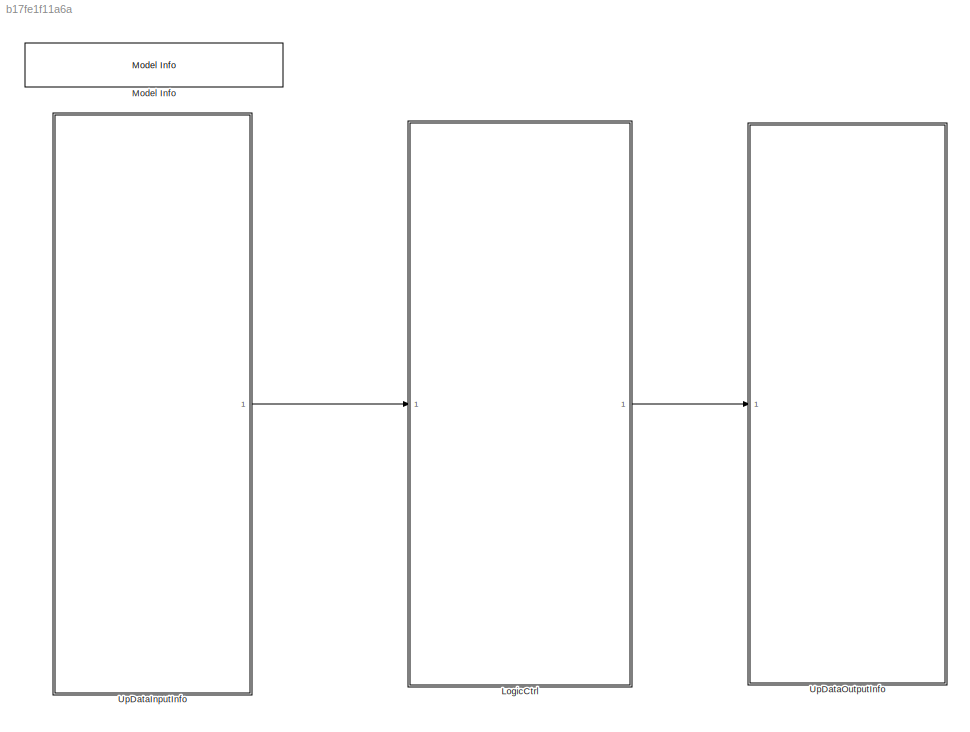
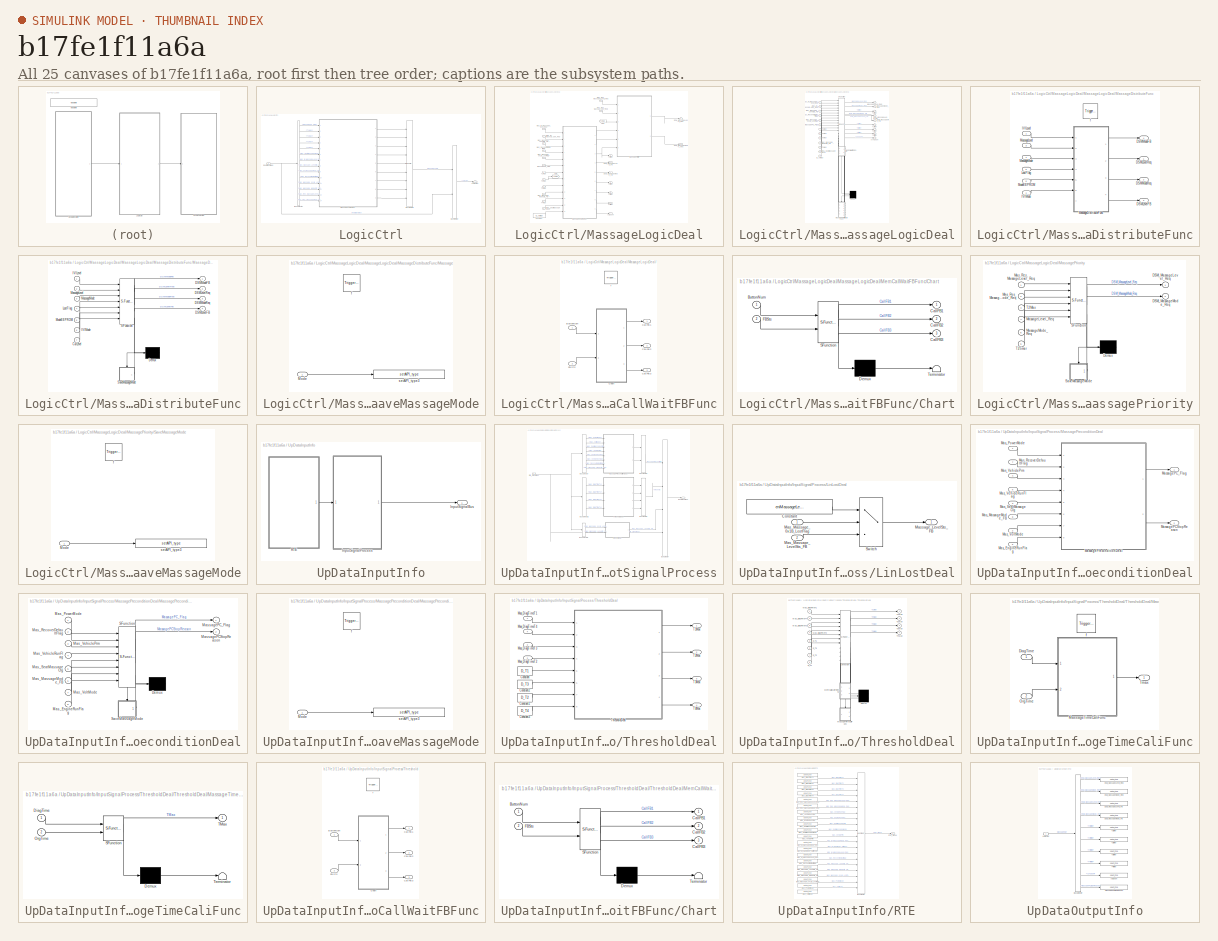
[diagram: thumbnail index - all 25 canvases of the model, root first then tree order]
MODEL slx_b17fe1f11a6a
KIND model
BLOCK [SubSystem] LogicCtrl
  Ports = [1, 1]
  Priority = 2
  RTWFcnNameOpts = Use subsystem name
  RTWSystemCode = Nonreusable function
  RequestExecContextInheritance = off
  TreatAsAtomicUnit = on
BLOCK [BusCreator] LogicCtrl/Bus Creator
  DisplayOption = bar
  InheritFromInputs = on
  Inputs = 2
  Ports = [2, 1]
BLOCK [BusCreator] LogicCtrl/Bus Creator1
  DisplayOption = bar
  InheritFromInputs = on
  Inputs = 9
  Ports = [9, 1]
BLOCK [BusSelector] LogicCtrl/Bus Selector
  OutputAsBus = off
  OutputSignals = MassagePrecondition.MassagePC_Flag,Threshold.T1Max,Threshold.T2Max,Threshold.T3Max,Threshold.T4Max,Rte_SignalBus1.Mas_SeatMassageMode,Rte_SignalBus1.Mas_IVI_MassageLevel_Req,Mas_Massage_LevelSts_FB,Rte_SignalBus1.Mas_IVI_MassageMode_Req,Rte_SignalBus1.Mas_RecoverDefaultFlag,Rte_SignalBus1.Mas_Massage_0x1B_LostFlag,Rte_SignalBus1.Mas_Massage_ModeSts_FB,Rte_SignalBus1.Mas_Res_MassageLevel_Req,Rte_Si...<+32ch>
  Ports = [1, 14]
BLOCK [Inport] LogicCtrl/InputSignalBus
  IconDisplay = Port number
BLOCK [Outport] LogicCtrl/LogicOut
  IconDisplay = Port number
BLOCK [SubSystem] LogicCtrl/MassageLogicDeal
  AttributesFormatString = %<Description>
  Description = 按摩逻辑处理
  Ports = [14, 9]
  RequestExecContextInheritance = off
BLOCK [Outport] LogicCtrl/MassageLogicDeal/ActCount
  IconDisplay = Port number
  Port = 7
BLOCK [Constant] LogicCtrl/MassageLogicDeal/Constant
  Value = D_ActMax
BLOCK [Outport] LogicCtrl/MassageLogicDeal/DSM_MassageLevel_FB
  IconDisplay = Port number
BLOCK [Outport] LogicCtrl/MassageLogicDeal/DSM_MassageLevel_Req
  IconDisplay = Port number
  Port = 8
BLOCK [Outport] LogicCtrl/MassageLogicDeal/DSM_MassageMode_FB
  IconDisplay = Port number
  Port = 2
BLOCK [Outport] LogicCtrl/MassageLogicDeal/DSM_MassageMode_Req
  IconDisplay = Port number
  Port = 9
BLOCK [From] LogicCtrl/MassageLogicDeal/From
  GotoTag = T2Max
BLOCK [Goto] LogicCtrl/MassageLogicDeal/Goto
  GotoTag = T2Max
BLOCK [Inport] LogicCtrl/MassageLogicDeal/Mas_IVI_MassageLevel_Req
  IconDisplay = Port number
  Port = 7
BLOCK [Inport] LogicCtrl/MassageLogicDeal/Mas_IVI_MassageMode_Req
  IconDisplay = Port number
  Port = 9
BLOCK [Inport] LogicCtrl/MassageLogicDeal/Mas_Massage_0x1B_LostFlag
  IconDisplay = Port number
  Port = 11
BLOCK [Inport] LogicCtrl/MassageLogicDeal/Mas_Massage_LevelSts_FB
  IconDisplay = Port number
  Port = 8
BLOCK [Inport] LogicCtrl/MassageLogicDeal/Mas_Massage_ModeSts_FB
  IconDisplay = Port number
  Port = 12
BLOCK [Inport] LogicCtrl/MassageLogicDeal/Mas_RecoverDefaultFlag
  IconDisplay = Port number
  Port = 10
BLOCK [Inport] LogicCtrl/MassageLogicDeal/Mas_Res_MassageLevel_Req
  IconDisplay = Port number
  Port = 13
BLOCK [Inport] LogicCtrl/MassageLogicDeal/Mas_Res_MassageMode_Req
  IconDisplay = Port number
  Port = 14
BLOCK [Inport] LogicCtrl/MassageLogicDeal/Mas_SeatMassageMode
  IconDisplay = Port number
  Port = 6
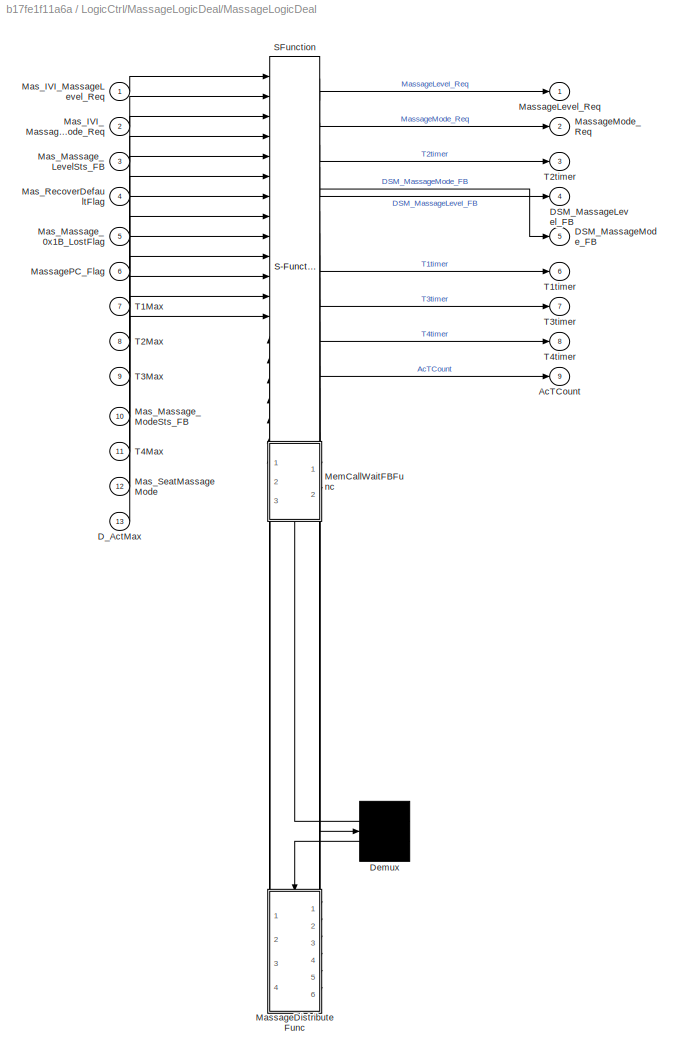
BLOCK [SubSystem] LogicCtrl/MassageLogicDeal/MassageLogicDeal
  ErrorFcn = Stateflow.Translate.translate
  PermitHierarchicalResolution = ExplicitOnly
  Ports = [13, 9]
  RequestExecContextInheritance = off
  SFBlockType = Chart
  TreatAsAtomicUnit = on
BLOCK [Demux] LogicCtrl/MassageLogicDeal/MassageLogicDeal/ Demux 
  Outputs = 2
  Ports = [1, 2]
BLOCK [S-Function] LogicCtrl/MassageLogicDeal/MassageLogicDeal/ SFunction 
  EnableBusSupport = on
  FunctionName = sf_sfun
  Parameters = FALSE,TRUE
  PortCounts = [20 18]
  Ports = [20, 18]
  SFcnIsStateOwnerBlock = off
  SFunctionDeploymentMode = off
  Tag = Stateflow S-Function Appl_MassageMode_CtrlModel 8
BLOCK [Outport] LogicCtrl/MassageLogicDeal/MassageLogicDeal/AcTCount
  IconDisplay = Port number
  Port = 9
BLOCK [Outport] LogicCtrl/MassageLogicDeal/MassageLogicDeal/DSM_MassageLevel_FB
  IconDisplay = Port number
  Port = 4
BLOCK [Outport] LogicCtrl/MassageLogicDeal/MassageLogicDeal/DSM_MassageMode_FB
  IconDisplay = Port number
  Port = 5
BLOCK [Inport] LogicCtrl/MassageLogicDeal/MassageLogicDeal/D_ActMax
  IconDisplay = Port number
  Port = 13
BLOCK [Inport] LogicCtrl/MassageLogicDeal/MassageLogicDeal/Mas_IVI_MassageLevel_Req
  IconDisplay = Port number
BLOCK [Inport] LogicCtrl/MassageLogicDeal/MassageLogicDeal/Mas_IVI_MassageMode_Req
  IconDisplay = Port number
  Port = 2
BLOCK [Inport] LogicCtrl/MassageLogicDeal/MassageLogicDeal/Mas_Massage_0x1B_LostFlag
  IconDisplay = Port number
  Port = 5
BLOCK [Inport] LogicCtrl/MassageLogicDeal/MassageLogicDeal/Mas_Massage_LevelSts_FB
  IconDisplay = Port number
  Port = 3
BLOCK [Inport] LogicCtrl/MassageLogicDeal/MassageLogicDeal/Mas_Massage_ModeSts_FB
  IconDisplay = Port number
  Port = 10
BLOCK [Inport] LogicCtrl/MassageLogicDeal/MassageLogicDeal/Mas_RecoverDefaultFlag
  IconDisplay = Port number
  Port = 4
BLOCK [Inport] LogicCtrl/MassageLogicDeal/MassageLogicDeal/Mas_SeatMassageMode
  IconDisplay = Port number
  Port = 12
BLOCK [SubSystem] LogicCtrl/MassageLogicDeal/MassageLogicDeal/MassageDistributeFunc
  Ports = [6, 4, 0, 1]
  PreDeleteFcn = Stateflow.SLINSF.SimulinkMan.removePreDeleteFcn
  RequestExecContextInheritance = off
  UndoDeleteFcn = Stateflow.SLINSF.SimulinkMan.restorePreDeleteFcn
BLOCK [Outport] LogicCtrl/MassageLogicDeal/MassageLogicDeal/MassageDistributeFunc/DSMLevelFB
  IconDisplay = Port number
  Port = 3
BLOCK [Outport] LogicCtrl/MassageLogicDeal/MassageLogicDeal/MassageDistributeFunc/DSMLevelReq
  IconDisplay = Port number
BLOCK [Outport] LogicCtrl/MassageLogicDeal/MassageLogicDeal/MassageDistributeFunc/DSMModeFB
  IconDisplay = Port number
  Port = 4
BLOCK [Outport] LogicCtrl/MassageLogicDeal/MassageLogicDeal/MassageDistributeFunc/DSMModeReq
  IconDisplay = Port number
  Port = 2
BLOCK [Inport] LogicCtrl/MassageLogicDeal/MassageLogicDeal/MassageDistributeFunc/IVILevel
  IconDisplay = Port number
BLOCK [Inport] LogicCtrl/MassageLogicDeal/MassageLogicDeal/MassageDistributeFunc/IVIMode
  IconDisplay = Port number
  Port = 2
BLOCK [Inport] LogicCtrl/MassageLogicDeal/MassageLogicDeal/MassageDistributeFunc/LostFlag
  IconDisplay = Port number
  Port = 5
BLOCK [SubSystem] LogicCtrl/MassageLogicDeal/MassageLogicDeal/MassageDistributeFunc/MassageDistributeFunc
  ErrorFcn = Stateflow.Translate.translate
  PermitHierarchicalResolution = ExplicitOnly
  Ports = [7, 4]
  RequestExecContextInheritance = off
  SFBlockType = Chart
  TreatAsAtomicUnit = on
BLOCK [Demux] LogicCtrl/MassageLogicDeal/MassageLogicDeal/MassageDistributeFunc/MassageDistributeFunc/ Demux 
  Outputs = 1
  Ports = [1, 1]
BLOCK [S-Function] LogicCtrl/MassageLogicDeal/MassageLogicDeal/MassageDistributeFunc/MassageDistributeFunc/ SFunction 
  EnableBusSupport = off
  FunctionName = sf_sfun
  Parameters = TRUE
  PortCounts = [7 6]
  Ports = [7, 6]
  SFcnIsStateOwnerBlock = off
  SFunctionDeploymentMode = off
  Tag = Stateflow S-Function Appl_MassageMode_CtrlModel 5
BLOCK [Inport] LogicCtrl/MassageLogicDeal/MassageLogicDeal/MassageDistributeFunc/MassageDistributeFunc/CurLevel
  IconDisplay = Port number
  Port = 7
BLOCK [Outport] LogicCtrl/MassageLogicDeal/MassageLogicDeal/MassageDistributeFunc/MassageDistributeFunc/DSMLevelFB
  IconDisplay = Port number
  Port = 4
BLOCK [Outport] LogicCtrl/MassageLogicDeal/MassageLogicDeal/MassageDistributeFunc/MassageDistributeFunc/DSMLevelReq
  IconDisplay = Port number
  Port = 2
BLOCK [Outport] LogicCtrl/MassageLogicDeal/MassageLogicDeal/MassageDistributeFunc/MassageDistributeFunc/DSMModeFB
  IconDisplay = Port number
BLOCK [Outport] LogicCtrl/MassageLogicDeal/MassageLogicDeal/MassageDistributeFunc/MassageDistributeFunc/DSMModeReq
  IconDisplay = Port number
  Port = 3
BLOCK [Inport] LogicCtrl/MassageLogicDeal/MassageLogicDeal/MassageDistributeFunc/MassageDistributeFunc/IVILevel
  IconDisplay = Port number
BLOCK [Inport] LogicCtrl/MassageLogicDeal/MassageLogicDeal/MassageDistributeFunc/MassageDistributeFunc/IVIMode
  IconDisplay = Port number
  Port = 6
BLOCK [Inport] LogicCtrl/MassageLogicDeal/MassageLogicDeal/MassageDistributeFunc/MassageDistributeFunc/LostFlag
  IconDisplay = Port number
  Port = 4
BLOCK [Inport] LogicCtrl/MassageLogicDeal/MassageLogicDeal/MassageDistributeFunc/MassageDistributeFunc/MassageLevel
  IconDisplay = Port number
  Port = 2
BLOCK [Inport] LogicCtrl/MassageLogicDeal/MassageLogicDeal/MassageDistributeFunc/MassageDistributeFunc/MassageMode
  IconDisplay = Port number
  Port = 3
BLOCK [Inport] LogicCtrl/MassageLogicDeal/MassageLogicDeal/MassageDistributeFunc/MassageDistributeFunc/ModeEEPROM
  IconDisplay = Port number
  Port = 5
BLOCK [SubSystem] LogicCtrl/MassageLogicDeal/MassageLogicDeal/MassageDistributeFunc/MassageDistributeFunc/SaveMassageMode
  Ports = [1, 0, 0, 1]
  PreDeleteFcn = Stateflow.SLINSF.SimulinkMan.removePreDeleteFcn
  RequestExecContextInheritance = off
  UndoDeleteFcn = Stateflow.SLINSF.SimulinkMan.restorePreDeleteFcn
BLOCK [Inport] LogicCtrl/MassageLogicDeal/MassageLogicDeal/MassageDistributeFunc/MassageDistributeFunc/SaveMassageMode/Mode
  IconDisplay = Port number
BLOCK [TriggerPort] LogicCtrl/MassageLogicDeal/MassageLogicDeal/MassageDistributeFunc/MassageDistributeFunc/SaveMassageMode/f
  CopyFcn = Stateflow.SLINSF.SimulinkMan.removeBlockPreDeleteFcn
  Ports = []
  PreDeleteFcn = Stateflow.SLINSF.SimulinkMan.unsafePredeleteFcn
  StatesWhenEnabling = held
  TriggerType = function-call
  VariantControl = (inherit)
BLOCK [Reference] LogicCtrl/MassageLogicDeal/MassageLogicDeal/MassageDistributeFunc/MassageDistributeFunc/SaveMassageMode/setAPI_type3  REF=DareLib/Dare/setAPI_type
  AttributesFormatString = %<g_funcname>
  Ports = [1]
  SourceBlock = DareLib/Dare/setAPI_type
  SourceProductName = Dare Library
  SourceType = Dare Custom
BLOCK [Inport] LogicCtrl/MassageLogicDeal/MassageLogicDeal/MassageDistributeFunc/MassageLevel
  IconDisplay = Port number
  Port = 3
BLOCK [Inport] LogicCtrl/MassageLogicDeal/MassageLogicDeal/MassageDistributeFunc/MassageMode
  IconDisplay = Port number
  Port = 4
BLOCK [Inport] LogicCtrl/MassageLogicDeal/MassageLogicDeal/MassageDistributeFunc/ModeEEPROM
  IconDisplay = Port number
  Port = 6
BLOCK [TriggerPort] LogicCtrl/MassageLogicDeal/MassageLogicDeal/MassageDistributeFunc/f
  CopyFcn = Stateflow.SLINSF.SimulinkMan.removeBlockPreDeleteFcn
  Ports = []
  PreDeleteFcn = Stateflow.SLINSF.SimulinkMan.unsafePredeleteFcn
  StatesWhenEnabling = held
  TriggerType = function-call
  VariantControl = (inherit)
BLOCK [Outport] LogicCtrl/MassageLogicDeal/MassageLogicDeal/MassageLevel_Req
  IconDisplay = Port number
BLOCK [Outport] LogicCtrl/MassageLogicDeal/MassageLogicDeal/MassageMode_Req
  IconDisplay = Port number
  Port = 2
BLOCK [Inport] LogicCtrl/MassageLogicDeal/MassageLogicDeal/MassagePC_Flag
  IconDisplay = Port number
  Port = 6
BLOCK [SubSystem] LogicCtrl/MassageLogicDeal/MassageLogicDeal/MemCallWaitFBFunc
  Commented = on
  Ports = [2, 3, 0, 1]
  PreDeleteFcn = Stateflow.SLINSF.SimulinkMan.removePreDeleteFcn
  RequestExecContextInheritance = off
  UndoDeleteFcn = Stateflow.SLINSF.SimulinkMan.restorePreDeleteFcn
BLOCK [Inport] LogicCtrl/MassageLogicDeal/MassageLogicDeal/MemCallWaitFBFunc/ButtonNum
  IconDisplay = Port number
BLOCK [Outport] LogicCtrl/MassageLogicDeal/MassageLogicDeal/MemCallWaitFBFunc/CallFB1
  IconDisplay = Port number
BLOCK [Outport] LogicCtrl/MassageLogicDeal/MassageLogicDeal/MemCallWaitFBFunc/CallFB2
  IconDisplay = Port number
  Port = 2
BLOCK [Outport] LogicCtrl/MassageLogicDeal/MassageLogicDeal/MemCallWaitFBFunc/CallFB3
  IconDisplay = Port number
  Port = 3
BLOCK [SubSystem] LogicCtrl/MassageLogicDeal/MassageLogicDeal/MemCallWaitFBFunc/Chart
  ErrorFcn = Stateflow.Translate.translate
  PermitHierarchicalResolution = ExplicitOnly
  Ports = [2, 3]
  RequestExecContextInheritance = off
  SFBlockType = Chart
  TreatAsAtomicUnit = on
BLOCK [Demux] LogicCtrl/MassageLogicDeal/MassageLogicDeal/MemCallWaitFBFunc/Chart/ Demux 
  Outputs = 1
  Ports = [1, 1]
BLOCK [S-Function] LogicCtrl/MassageLogicDeal/MassageLogicDeal/MemCallWaitFBFunc/Chart/ SFunction 
  EnableBusSupport = off
  FunctionName = sf_sfun
  PortCounts = [2 4]
  Ports = [2, 4]
  SFcnIsStateOwnerBlock = off
  SFunctionDeploymentMode = off
  Tag = Stateflow S-Function Appl_MassageMode_CtrlModel 4
BLOCK [Terminator] LogicCtrl/MassageLogicDeal/MassageLogicDeal/MemCallWaitFBFunc/Chart/ Terminator 
BLOCK [Inport] LogicCtrl/MassageLogicDeal/MassageLogicDeal/MemCallWaitFBFunc/Chart/ButtonNum
  IconDisplay = Port number
BLOCK [Outport] LogicCtrl/MassageLogicDeal/MassageLogicDeal/MemCallWaitFBFunc/Chart/CallFB1
  IconDisplay = Port number
BLOCK [Outport] LogicCtrl/MassageLogicDeal/MassageLogicDeal/MemCallWaitFBFunc/Chart/CallFB2
  IconDisplay = Port number
  Port = 2
BLOCK [Outport] LogicCtrl/MassageLogicDeal/MassageLogicDeal/MemCallWaitFBFunc/Chart/CallFB3
  IconDisplay = Port number
  Port = 3
BLOCK [Inport] LogicCtrl/MassageLogicDeal/MassageLogicDeal/MemCallWaitFBFunc/Chart/FBSts
  IconDisplay = Port number
  Port = 2
BLOCK [Inport] LogicCtrl/MassageLogicDeal/MassageLogicDeal/MemCallWaitFBFunc/FBSts
  IconDisplay = Port number
  Port = 2
BLOCK [TriggerPort] LogicCtrl/MassageLogicDeal/MassageLogicDeal/MemCallWaitFBFunc/f
  CopyFcn = Stateflow.SLINSF.SimulinkMan.removeBlockPreDeleteFcn
  Ports = []
  PreDeleteFcn = Stateflow.SLINSF.SimulinkMan.unsafePredeleteFcn
  StatesWhenEnabling = held
  TriggerType = function-call
  VariantControl = (inherit)
BLOCK [Inport] LogicCtrl/MassageLogicDeal/MassageLogicDeal/T1Max
  IconDisplay = Port number
  Port = 7
BLOCK [Outport] LogicCtrl/MassageLogicDeal/MassageLogicDeal/T1timer
  IconDisplay = Port number
  Port = 6
BLOCK [Inport] LogicCtrl/MassageLogicDeal/MassageLogicDeal/T2Max
  IconDisplay = Port number
  Port = 8
BLOCK [Outport] LogicCtrl/MassageLogicDeal/MassageLogicDeal/T2timer
  IconDisplay = Port number
  Port = 3
BLOCK [Inport] LogicCtrl/MassageLogicDeal/MassageLogicDeal/T3Max
  IconDisplay = Port number
  Port = 9
BLOCK [Outport] LogicCtrl/MassageLogicDeal/MassageLogicDeal/T3timer
  IconDisplay = Port number
  Port = 7
BLOCK [Inport] LogicCtrl/MassageLogicDeal/MassageLogicDeal/T4Max
  IconDisplay = Port number
  Port = 11
BLOCK [Outport] LogicCtrl/MassageLogicDeal/MassageLogicDeal/T4timer
  IconDisplay = Port number
  Port = 8
BLOCK [Inport] LogicCtrl/MassageLogicDeal/MassagePC_Flag
  IconDisplay = Port number
BLOCK [SubSystem] LogicCtrl/MassageLogicDeal/MassagePriority
  ErrorFcn = Stateflow.Translate.translate
  PermitHierarchicalResolution = ExplicitOnly
  Ports = [6, 2]
  RequestExecContextInheritance = off
  SFBlockType = Chart
  TreatAsAtomicUnit = on
BLOCK [Demux] LogicCtrl/MassageLogicDeal/MassagePriority/ Demux 
  Outputs = 1
  Ports = [1, 1]
BLOCK [S-Function] LogicCtrl/MassageLogicDeal/MassagePriority/ SFunction 
  EnableBusSupport = on
  FunctionName = sf_sfun
  Parameters = FALSE,TRUE
  PortCounts = [6 4]
  Ports = [6, 4]
  SFcnIsStateOwnerBlock = off
  SFunctionDeploymentMode = off
  Tag = Stateflow S-Function Appl_MassageMode_CtrlModel 6
BLOCK [Outport] LogicCtrl/MassageLogicDeal/MassagePriority/DSM_MassageLevel_Req
  IconDisplay = Port number
BLOCK [Outport] LogicCtrl/MassageLogicDeal/MassagePriority/DSM_MassageMode_Req
  IconDisplay = Port number
  Port = 2
BLOCK [Inport] LogicCtrl/MassageLogicDeal/MassagePriority/Mas_Res_MassageLevel_Req
  IconDisplay = Port number
BLOCK [Inport] LogicCtrl/MassageLogicDeal/MassagePriority/Mas_Res_MassageMode_Req
  IconDisplay = Port number
  Port = 2
BLOCK [Inport] LogicCtrl/MassageLogicDeal/MassagePriority/MassageLevel_Req
  IconDisplay = Port number
  Port = 4
BLOCK [Inport] LogicCtrl/MassageLogicDeal/MassagePriority/MassageMode_Req
  IconDisplay = Port number
  Port = 5
BLOCK [SubSystem] LogicCtrl/MassageLogicDeal/MassagePriority/SaveMassageMode
  Ports = [1, 0, 0, 1]
  PreDeleteFcn = Stateflow.SLINSF.SimulinkMan.removePreDeleteFcn
  RequestExecContextInheritance = off
  UndoDeleteFcn = Stateflow.SLINSF.SimulinkMan.restorePreDeleteFcn
BLOCK [Inport] LogicCtrl/MassageLogicDeal/MassagePriority/SaveMassageMode/Mode
  IconDisplay = Port number
BLOCK [TriggerPort] LogicCtrl/MassageLogicDeal/MassagePriority/SaveMassageMode/f
  CopyFcn = Stateflow.SLINSF.SimulinkMan.removeBlockPreDeleteFcn
  Ports = []
  PreDeleteFcn = Stateflow.SLINSF.SimulinkMan.unsafePredeleteFcn
  StatesWhenEnabling = held
  TriggerType = function-call
  VariantControl = (inherit)
BLOCK [Reference] LogicCtrl/MassageLogicDeal/MassagePriority/SaveMassageMode/setAPI_type3  REF=DareLib/Dare/setAPI_type
  AttributesFormatString = %<g_funcname>
  Ports = [1]
  SourceBlock = DareLib/Dare/setAPI_type
  SourceProductName = Dare Library
  SourceType = Dare Custom
BLOCK [Inport] LogicCtrl/MassageLogicDeal/MassagePriority/T2Max
  IconDisplay = Port number
  Port = 3
BLOCK [Inport] LogicCtrl/MassageLogicDeal/MassagePriority/T2timer
  IconDisplay = Port number
  Port = 6
BLOCK [Inport] LogicCtrl/MassageLogicDeal/T1Max
  IconDisplay = Port number
  Port = 2
BLOCK [Outport] LogicCtrl/MassageLogicDeal/T1timer
  IconDisplay = Port number
  Port = 3
BLOCK [Inport] LogicCtrl/MassageLogicDeal/T2Max
  IconDisplay = Port number
  Port = 3
BLOCK [Outport] LogicCtrl/MassageLogicDeal/T2timer
  IconDisplay = Port number
  Port = 4
BLOCK [Inport] LogicCtrl/MassageLogicDeal/T3Max
  IconDisplay = Port number
  Port = 4
BLOCK [Outport] LogicCtrl/MassageLogicDeal/T3timer
  IconDisplay = Port number
  Port = 5
BLOCK [Inport] LogicCtrl/MassageLogicDeal/T4Max
  IconDisplay = Port number
  Port = 5
BLOCK [Outport] LogicCtrl/MassageLogicDeal/T4timer
  IconDisplay = Port number
  Port = 6
BLOCK [Reference] Model Info  REF=simulink/Model-Wide
Utilities/Model Info
  Ports = []
  SourceBlock = simulink/Model-Wide\nUtilities/Model Info
  SourceProductBaseCode = SL
  SourceProductName = Simulink
  SourceType = CMBlock
BLOCK [SubSystem] UpDataInputInfo
  Ports = [0, 1]
  Priority = 1
  RTWFcnNameOpts = Use subsystem name
  RTWSystemCode = Nonreusable function
  RequestExecContextInheritance = off
  TreatAsAtomicUnit = on
BLOCK [Outport] UpDataInputInfo/InputSignalBus
  IconDisplay = Port number
BLOCK [SubSystem] UpDataInputInfo/InputSignalProcess
  AttributesFormatString = %<Description>
  Description = 预处理
  Ports = [1, 1]
  RTWFcnNameOpts = Use subsystem name
  RTWSystemCode = Nonreusable function
  RequestExecContextInheritance = off
BLOCK [BusCreator] UpDataInputInfo/InputSignalProcess/Bus Creator
  DisplayOption = bar
  InheritFromInputs = on
  Inputs = 4
  Ports = [4, 1]
BLOCK [BusCreator] UpDataInputInfo/InputSignalProcess/Bus Creator1
  DisplayOption = bar
  InheritFromInputs = on
  Inputs = 2
  Ports = [2, 1]
BLOCK [BusCreator] UpDataInputInfo/InputSignalProcess/Bus Creator2
  DisplayOption = bar
  InheritFromInputs = on
  Inputs = 4
  Ports = [4, 1]
BLOCK [BusSelector] UpDataInputInfo/InputSignalProcess/Bus Selector
  OutputAsBus = off
  OutputSignals = Mas_PowerMode,Mas_VoltMode,Mas_SeatMassageCfg,Mas_VehiclePrm,Mas_EngineRunFlag,Mas_VehicleRunFlag,Mas_RecoverDefaultFlag,Mas_Massage_ModeSts_FB
  Ports = [1, 8]
BLOCK [BusSelector] UpDataInputInfo/InputSignalProcess/Bus Selector1
  OutputAsBus = off
  OutputSignals = Mas_DiagTimeT1,Mas_DiagTimeT2,Mas_DiagTimeT3,Mas_DiagTimeT4
  Ports = [1, 4]
BLOCK [BusSelector] UpDataInputInfo/InputSignalProcess/Bus Selector2
  OutputAsBus = off
  OutputSignals = Mas_Massage_0x1B_LostFlag,Mas_Massage_LevelSts_FB
  Ports = [1, 2]
BLOCK [Outport] UpDataInputInfo/InputSignalProcess/InputSignalBus
  IconDisplay = Port number
BLOCK [SubSystem] UpDataInputInfo/InputSignalProcess/LinLostDeal
  AttributesFormatString = %<Description>
  Description = LIN节点掉线处理
  Ports = [2, 1]
  RequestExecContextInheritance = off
BLOCK [Constant] UpDataInputInfo/InputSignalProcess/LinLostDeal/Constant
  Value = enMassageLevel_DSM.EN_OFF
BLOCK [Inport] UpDataInputInfo/InputSignalProcess/LinLostDeal/Mas_Massage_0x1B_LostFlag
  IconDisplay = Port number
BLOCK [Inport] UpDataInputInfo/InputSignalProcess/LinLostDeal/Mas_Massage_LevelSts_FB
  IconDisplay = Port number
  Port = 2
BLOCK [Outport] UpDataInputInfo/InputSignalProcess/LinLostDeal/Massage_LevelSts_FB
  IconDisplay = Port number
BLOCK [Switch] UpDataInputInfo/InputSignalProcess/LinLostDeal/Switch
  Criteria = u2 ~= 0
  InputSameDT = off
  SaturateOnIntegerOverflow = off
BLOCK [SubSystem] UpDataInputInfo/InputSignalProcess/MassagePreconditionDeal
  AttributesFormatString = %<Description>
  Description = 按摩前置条件处理
  Ports = [8, 2]
  RequestExecContextInheritance = off
BLOCK [Inport] UpDataInputInfo/InputSignalProcess/MassagePreconditionDeal/Mas_EngineRunFlag
  IconDisplay = Port number
  Port = 5
BLOCK [Inport] UpDataInputInfo/InputSignalProcess/MassagePreconditionDeal/Mas_MassageMode_FB
  IconDisplay = Port number
  Port = 8
BLOCK [Inport] UpDataInputInfo/InputSignalProcess/MassagePreconditionDeal/Mas_PowerMode
  IconDisplay = Port number
BLOCK [Inport] UpDataInputInfo/InputSignalProcess/MassagePreconditionDeal/Mas_RecoverDefaultFlag
  IconDisplay = Port number
  Port = 7
BLOCK [Inport] UpDataInputInfo/InputSignalProcess/MassagePreconditionDeal/Mas_SeatMassageCfg
  IconDisplay = Port number
  Port = 3
BLOCK [Inport] UpDataInputInfo/InputSignalProcess/MassagePreconditionDeal/Mas_VehiclePrm
  IconDisplay = Port number
  Port = 4
BLOCK [Inport] UpDataInputInfo/InputSignalProcess/MassagePreconditionDeal/Mas_VehicleRunFlag
  IconDisplay = Port number
  Port = 6
BLOCK [Inport] UpDataInputInfo/InputSignalProcess/MassagePreconditionDeal/Mas_VoltMode
  IconDisplay = Port number
  Port = 2
BLOCK [Outport] UpDataInputInfo/InputSignalProcess/MassagePreconditionDeal/MassagePCStopReason
  IconDisplay = Port number
  Port = 2
BLOCK [Outport] UpDataInputInfo/InputSignalProcess/MassagePreconditionDeal/MassagePC_Flag
  IconDisplay = Port number
BLOCK [SubSystem] UpDataInputInfo/InputSignalProcess/MassagePreconditionDeal/MassagePreconditionDeal
  ErrorFcn = Stateflow.Translate.translate
  PermitHierarchicalResolution = ExplicitOnly
  Ports = [8, 2]
  RequestExecContextInheritance = off
  SFBlockType = Chart
  TreatAsAtomicUnit = on
BLOCK [Demux] UpDataInputInfo/InputSignalProcess/MassagePreconditionDeal/MassagePreconditionDeal/ Demux 
  Outputs = 1
  Ports = [1, 1]
BLOCK [S-Function] UpDataInputInfo/InputSignalProcess/MassagePreconditionDeal/MassagePreconditionDeal/ SFunction 
  EnableBusSupport = on
  FunctionName = sf_sfun
  Parameters = FALSE,TRUE
  PortCounts = [8 4]
  Ports = [8, 4]
  SFcnIsStateOwnerBlock = off
  SFunctionDeploymentMode = off
  Tag = Stateflow S-Function Appl_MassageMode_CtrlModel 11
BLOCK [Inport] UpDataInputInfo/InputSignalProcess/MassagePreconditionDeal/MassagePreconditionDeal/Mas_EngineRunFlag
  IconDisplay = Port number
  Port = 8
BLOCK [Inport] UpDataInputInfo/InputSignalProcess/MassagePreconditionDeal/MassagePreconditionDeal/Mas_MassageMode_FB
  IconDisplay = Port number
  Port = 6
BLOCK [Inport] UpDataInputInfo/InputSignalProcess/MassagePreconditionDeal/MassagePreconditionDeal/Mas_PowerMode
  IconDisplay = Port number
BLOCK [Inport] UpDataInputInfo/InputSignalProcess/MassagePreconditionDeal/MassagePreconditionDeal/Mas_RecoverDefaultFlag
  IconDisplay = Port number
  Port = 2
BLOCK [Inport] UpDataInputInfo/InputSignalProcess/MassagePreconditionDeal/MassagePreconditionDeal/Mas_SeatMassageCfg
  IconDisplay = Port number
  Port = 5
BLOCK [Inport] UpDataInputInfo/InputSignalProcess/MassagePreconditionDeal/MassagePreconditionDeal/Mas_VehiclePrm
  IconDisplay = Port number
  Port = 3
BLOCK [Inport] UpDataInputInfo/InputSignalProcess/MassagePreconditionDeal/MassagePreconditionDeal/Mas_VehicleRunFlag
  IconDisplay = Port number
  Port = 4
BLOCK [Inport] UpDataInputInfo/InputSignalProcess/MassagePreconditionDeal/MassagePreconditionDeal/Mas_VoltMode
  IconDisplay = Port number
  Port = 7
BLOCK [Outport] UpDataInputInfo/InputSignalProcess/MassagePreconditionDeal/MassagePreconditionDeal/MassagePCStopReason
  IconDisplay = Port number
  Port = 2
BLOCK [Outport] UpDataInputInfo/InputSignalProcess/MassagePreconditionDeal/MassagePreconditionDeal/MassagePC_Flag
  IconDisplay = Port number
BLOCK [SubSystem] UpDataInputInfo/InputSignalProcess/MassagePreconditionDeal/MassagePreconditionDeal/SaveMassageMode
  Ports = [1, 0, 0, 1]
  PreDeleteFcn = Stateflow.SLINSF.SimulinkMan.removePreDeleteFcn
  RequestExecContextInheritance = off
  UndoDeleteFcn = Stateflow.SLINSF.SimulinkMan.restorePreDeleteFcn
BLOCK [Inport] UpDataInputInfo/InputSignalProcess/MassagePreconditionDeal/MassagePreconditionDeal/SaveMassageMode/Mode
  IconDisplay = Port number
BLOCK [TriggerPort] UpDataInputInfo/InputSignalProcess/MassagePreconditionDeal/MassagePreconditionDeal/SaveMassageMode/f
  CopyFcn = Stateflow.SLINSF.SimulinkMan.removeBlockPreDeleteFcn
  Ports = []
  PreDeleteFcn = Stateflow.SLINSF.SimulinkMan.unsafePredeleteFcn
  StatesWhenEnabling = held
  TriggerType = function-call
  VariantControl = (inherit)
BLOCK [Reference] UpDataInputInfo/InputSignalProcess/MassagePreconditionDeal/MassagePreconditionDeal/SaveMassageMode/setAPI_type3  REF=DareLib/Dare/setAPI_type
  AttributesFormatString = %<g_funcname>
  Ports = [1]
  SourceBlock = DareLib/Dare/setAPI_type
  SourceProductName = Dare Library
  SourceType = Dare Custom
BLOCK [Inport] UpDataInputInfo/InputSignalProcess/Rte_SignalBus
  IconDisplay = Port number
BLOCK [SubSystem] UpDataInputInfo/InputSignalProcess/ThresholdDeal
  AttributesFormatString = %<Description>
  Description = 时间阈值配置处理
  Ports = [4, 4]
  RequestExecContextInheritance = off
BLOCK [Constant] UpDataInputInfo/InputSignalProcess/ThresholdDeal/Constant
  Value = D_T1
BLOCK [Constant] UpDataInputInfo/InputSignalProcess/ThresholdDeal/Constant1
  Value = D_T2
BLOCK [Constant] UpDataInputInfo/InputSignalProcess/ThresholdDeal/Constant2
  Value = D_T3
BLOCK [Constant] UpDataInputInfo/InputSignalProcess/ThresholdDeal/Constant3
  Value = D_T4
BLOCK [Inport] UpDataInputInfo/InputSignalProcess/ThresholdDeal/Mas_DiagTimeT1
  IconDisplay = Port number
BLOCK [Inport] UpDataInputInfo/InputSignalProcess/ThresholdDeal/Mas_DiagTimeT2
  IconDisplay = Port number
  Port = 2
BLOCK [Inport] UpDataInputInfo/InputSignalProcess/ThresholdDeal/Mas_DiagTimeT3
  IconDisplay = Port number
  Port = 3
BLOCK [Inport] UpDataInputInfo/InputSignalProcess/ThresholdDeal/Mas_DiagTimeT4
  IconDisplay = Port number
  Port = 4
BLOCK [Outport] UpDataInputInfo/InputSignalProcess/ThresholdDeal/T1Max
  IconDisplay = Port number
BLOCK [Outport] UpDataInputInfo/InputSignalProcess/ThresholdDeal/T2Max
  IconDisplay = Port number
  Port = 2
BLOCK [Outport] UpDataInputInfo/InputSignalProcess/ThresholdDeal/T3Max
  IconDisplay = Port number
  Port = 3
BLOCK [Outport] UpDataInputInfo/InputSignalProcess/ThresholdDeal/T4Max
  IconDisplay = Port number
  Port = 4
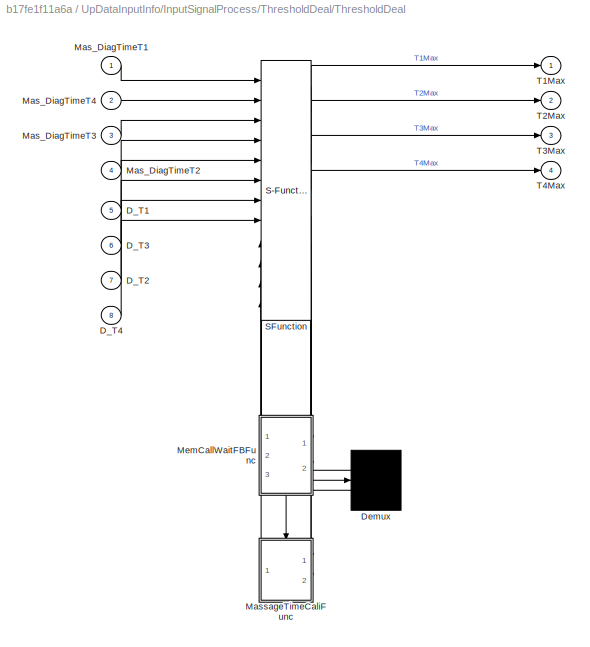
BLOCK [SubSystem] UpDataInputInfo/InputSignalProcess/ThresholdDeal/ThresholdDeal
  ErrorFcn = Stateflow.Translate.translate
  PermitHierarchicalResolution = ExplicitOnly
  Ports = [8, 4]
  RequestExecContextInheritance = off
  SFBlockType = Chart
  TreatAsAtomicUnit = on
BLOCK [Demux] UpDataInputInfo/InputSignalProcess/ThresholdDeal/ThresholdDeal/ Demux 
  Outputs = 2
  Ports = [1, 2]
BLOCK [S-Function] UpDataInputInfo/InputSignalProcess/ThresholdDeal/ThresholdDeal/ SFunction 
  EnableBusSupport = on
  FunctionName = sf_sfun
  Parameters = FALSE,TRUE
  PortCounts = [12 9]
  Ports = [12, 9]
  SFcnIsStateOwnerBlock = off
  SFunctionDeploymentMode = off
  Tag = Stateflow S-Function Appl_MassageMode_CtrlModel 1
BLOCK [Inport] UpDataInputInfo/InputSignalProcess/ThresholdDeal/ThresholdDeal/D_T1
  IconDisplay = Port number
  Port = 5
BLOCK [Inport] UpDataInputInfo/InputSignalProcess/ThresholdDeal/ThresholdDeal/D_T2
  IconDisplay = Port number
  Port = 7
BLOCK [Inport] UpDataInputInfo/InputSignalProcess/ThresholdDeal/ThresholdDeal/D_T3
  IconDisplay = Port number
  Port = 6
BLOCK [Inport] UpDataInputInfo/InputSignalProcess/ThresholdDeal/ThresholdDeal/D_T4
  IconDisplay = Port number
  Port = 8
BLOCK [Inport] UpDataInputInfo/InputSignalProcess/ThresholdDeal/ThresholdDeal/Mas_DiagTimeT1
  IconDisplay = Port number
BLOCK [Inport] UpDataInputInfo/InputSignalProcess/ThresholdDeal/ThresholdDeal/Mas_DiagTimeT2
  IconDisplay = Port number
  Port = 4
BLOCK [Inport] UpDataInputInfo/InputSignalProcess/ThresholdDeal/ThresholdDeal/Mas_DiagTimeT3
  IconDisplay = Port number
  Port = 3
BLOCK [Inport] UpDataInputInfo/InputSignalProcess/ThresholdDeal/ThresholdDeal/Mas_DiagTimeT4
  IconDisplay = Port number
  Port = 2
BLOCK [SubSystem] UpDataInputInfo/InputSignalProcess/ThresholdDeal/ThresholdDeal/MassageTimeCaliFunc
  Ports = [2, 1, 0, 1]
  PreDeleteFcn = Stateflow.SLINSF.SimulinkMan.removePreDeleteFcn
  RequestExecContextInheritance = off
  UndoDeleteFcn = Stateflow.SLINSF.SimulinkMan.restorePreDeleteFcn
BLOCK [Inport] UpDataInputInfo/InputSignalProcess/ThresholdDeal/ThresholdDeal/MassageTimeCaliFunc/DiagTime
  IconDisplay = Port number
BLOCK [SubSystem] UpDataInputInfo/InputSignalProcess/ThresholdDeal/ThresholdDeal/MassageTimeCaliFunc/MassageTimeCaliFunc
  ErrorFcn = Stateflow.Translate.translate
  PermitHierarchicalResolution = ExplicitOnly
  Ports = [2, 1]
  RequestExecContextInheritance = off
  SFBlockType = Chart
  TreatAsAtomicUnit = on
BLOCK [Demux] UpDataInputInfo/InputSignalProcess/ThresholdDeal/ThresholdDeal/MassageTimeCaliFunc/MassageTimeCaliFunc/ Demux 
  Outputs = 1
  Ports = [1, 1]
BLOCK [S-Function] UpDataInputInfo/InputSignalProcess/ThresholdDeal/ThresholdDeal/MassageTimeCaliFunc/MassageTimeCaliFunc/ SFunction 
  EnableBusSupport = off
  FunctionName = sf_sfun
  PortCounts = [2 2]
  Ports = [2, 2]
  SFcnIsStateOwnerBlock = off
  SFunctionDeploymentMode = off
  Tag = Stateflow S-Function Appl_MassageMode_CtrlModel 2
BLOCK [Terminator] UpDataInputInfo/InputSignalProcess/ThresholdDeal/ThresholdDeal/MassageTimeCaliFunc/MassageTimeCaliFunc/ Terminator 
BLOCK [Inport] UpDataInputInfo/InputSignalProcess/ThresholdDeal/ThresholdDeal/MassageTimeCaliFunc/MassageTimeCaliFunc/DiagTime
  IconDisplay = Port number
BLOCK [Inport] UpDataInputInfo/InputSignalProcess/ThresholdDeal/ThresholdDeal/MassageTimeCaliFunc/MassageTimeCaliFunc/OrgTime
  IconDisplay = Port number
  Port = 2
BLOCK [Outport] UpDataInputInfo/InputSignalProcess/ThresholdDeal/ThresholdDeal/MassageTimeCaliFunc/MassageTimeCaliFunc/TMax
  IconDisplay = Port number
BLOCK [Inport] UpDataInputInfo/InputSignalProcess/ThresholdDeal/ThresholdDeal/MassageTimeCaliFunc/OrgTime
  IconDisplay = Port number
  Port = 2
BLOCK [Outport] UpDataInputInfo/InputSignalProcess/ThresholdDeal/ThresholdDeal/MassageTimeCaliFunc/Tmax
  IconDisplay = Port number
BLOCK [TriggerPort] UpDataInputInfo/InputSignalProcess/ThresholdDeal/ThresholdDeal/MassageTimeCaliFunc/f
  CopyFcn = Stateflow.SLINSF.SimulinkMan.removeBlockPreDeleteFcn
  Ports = []
  PreDeleteFcn = Stateflow.SLINSF.SimulinkMan.unsafePredeleteFcn
  StatesWhenEnabling = held
  TriggerType = function-call
  VariantControl = (inherit)
BLOCK [SubSystem] UpDataInputInfo/InputSignalProcess/ThresholdDeal/ThresholdDeal/MemCallWaitFBFunc
  Commented = on
  Ports = [2, 3, 0, 1]
  PreDeleteFcn = Stateflow.SLINSF.SimulinkMan.removePreDeleteFcn
  RequestExecContextInheritance = off
  UndoDeleteFcn = Stateflow.SLINSF.SimulinkMan.restorePreDeleteFcn
BLOCK [Inport] UpDataInputInfo/InputSignalProcess/ThresholdDeal/ThresholdDeal/MemCallWaitFBFunc/ButtonNum
  IconDisplay = Port number
BLOCK [Outport] UpDataInputInfo/InputSignalProcess/ThresholdDeal/ThresholdDeal/MemCallWaitFBFunc/CallFB1
  IconDisplay = Port number
BLOCK [Outport] UpDataInputInfo/InputSignalProcess/ThresholdDeal/ThresholdDeal/MemCallWaitFBFunc/CallFB2
  IconDisplay = Port number
  Port = 2
BLOCK [Outport] UpDataInputInfo/InputSignalProcess/ThresholdDeal/ThresholdDeal/MemCallWaitFBFunc/CallFB3
  IconDisplay = Port number
  Port = 3
BLOCK [SubSystem] UpDataInputInfo/InputSignalProcess/ThresholdDeal/ThresholdDeal/MemCallWaitFBFunc/Chart
  ErrorFcn = Stateflow.Translate.translate
  PermitHierarchicalResolution = ExplicitOnly
  Ports = [2, 3]
  RequestExecContextInheritance = off
  SFBlockType = Chart
  TreatAsAtomicUnit = on
BLOCK [Demux] UpDataInputInfo/InputSignalProcess/ThresholdDeal/ThresholdDeal/MemCallWaitFBFunc/Chart/ Demux 
  Outputs = 1
  Ports = [1, 1]
BLOCK [S-Function] UpDataInputInfo/InputSignalProcess/ThresholdDeal/ThresholdDeal/MemCallWaitFBFunc/Chart/ SFunction 
  EnableBusSupport = off
  FunctionName = sf_sfun
  PortCounts = [2 4]
  Ports = [2, 4]
  SFcnIsStateOwnerBlock = off
  SFunctionDeploymentMode = off
  Tag = Stateflow S-Function Appl_MassageMode_CtrlModel 14
BLOCK [Terminator] UpDataInputInfo/InputSignalProcess/ThresholdDeal/ThresholdDeal/MemCallWaitFBFunc/Chart/ Terminator 
BLOCK [Inport] UpDataInputInfo/InputSignalProcess/ThresholdDeal/ThresholdDeal/MemCallWaitFBFunc/Chart/ButtonNum
  IconDisplay = Port number
BLOCK [Outport] UpDataInputInfo/InputSignalProcess/ThresholdDeal/ThresholdDeal/MemCallWaitFBFunc/Chart/CallFB1
  IconDisplay = Port number
BLOCK [Outport] UpDataInputInfo/InputSignalProcess/ThresholdDeal/ThresholdDeal/MemCallWaitFBFunc/Chart/CallFB2
  IconDisplay = Port number
  Port = 2
BLOCK [Outport] UpDataInputInfo/InputSignalProcess/ThresholdDeal/ThresholdDeal/MemCallWaitFBFunc/Chart/CallFB3
  IconDisplay = Port number
  Port = 3
BLOCK [Inport] UpDataInputInfo/InputSignalProcess/ThresholdDeal/ThresholdDeal/MemCallWaitFBFunc/Chart/FBSts
  IconDisplay = Port number
  Port = 2
BLOCK [Inport] UpDataInputInfo/InputSignalProcess/ThresholdDeal/ThresholdDeal/MemCallWaitFBFunc/FBSts
  IconDisplay = Port number
  Port = 2
BLOCK [TriggerPort] UpDataInputInfo/InputSignalProcess/ThresholdDeal/ThresholdDeal/MemCallWaitFBFunc/f
  CopyFcn = Stateflow.SLINSF.SimulinkMan.removeBlockPreDeleteFcn
  Ports = []
  PreDeleteFcn = Stateflow.SLINSF.SimulinkMan.unsafePredeleteFcn
  StatesWhenEnabling = held
  TriggerType = function-call
  VariantControl = (inherit)
BLOCK [Outport] UpDataInputInfo/InputSignalProcess/ThresholdDeal/ThresholdDeal/T1Max
  IconDisplay = Port number
BLOCK [Outport] UpDataInputInfo/InputSignalProcess/ThresholdDeal/ThresholdDeal/T2Max
  IconDisplay = Port number
  Port = 2
BLOCK [Outport] UpDataInputInfo/InputSignalProcess/ThresholdDeal/ThresholdDeal/T3Max
  IconDisplay = Port number
  Port = 3
BLOCK [Outport] UpDataInputInfo/InputSignalProcess/ThresholdDeal/ThresholdDeal/T4Max
  IconDisplay = Port number
  Port = 4
BLOCK [SubSystem] UpDataInputInfo/RTE
  AttributesFormatString = %<Description>
  Description = 接口自动生成
  Ports = [0, 1]
  RTWFcnNameOpts = Use subsystem name
  RTWSystemCode = Nonreusable function
  RequestExecContextInheritance = off
  TreatAsAtomicUnit = on
BLOCK [BusCreator] UpDataInputInfo/RTE/Bus Creator
  DisplayOption = bar
  InheritFromInputs = on
  Inputs = 20
  Ports = [20, 1]
BLOCK [Reference] UpDataInputInfo/RTE/Mas_DiagTimeT1  REF=DareLib/Dare/getAPI_type
  AttributesFormatString = %<g_funcname>
  Ports = [0, 1]
  SourceBlock = DareLib/Dare/getAPI_type
  SourceProductName = Dare Library
  SourceType = Dare Custom
BLOCK [Reference] UpDataInputInfo/RTE/Mas_DiagTimeT2  REF=DareLib/Dare/getAPI_type
  AttributesFormatString = %<g_funcname>
  Ports = [0, 1]
  SourceBlock = DareLib/Dare/getAPI_type
  SourceProductName = Dare Library
  SourceType = Dare Custom
BLOCK [Reference] UpDataInputInfo/RTE/Mas_DiagTimeT3  REF=DareLib/Dare/getAPI_type
  AttributesFormatString = %<g_funcname>
  Ports = [0, 1]
  SourceBlock = DareLib/Dare/getAPI_type
  SourceProductName = Dare Library
  SourceType = Dare Custom
BLOCK [Reference] UpDataInputInfo/RTE/Mas_DiagTimeT4  REF=DareLib/Dare/getAPI_type
  AttributesFormatString = %<g_funcname>
  Ports = [0, 1]
  SourceBlock = DareLib/Dare/getAPI_type
  SourceProductName = Dare Library
  SourceType = Dare Custom
BLOCK [Reference] UpDataInputInfo/RTE/Mas_EngineRunFlag  REF=DareLib/Dare/getAPI_type
  AttributesFormatString = %<g_funcname>
  Ports = [0, 1]
  SourceBlock = DareLib/Dare/getAPI_type
  SourceProductName = Dare Library
  SourceType = Dare Custom
BLOCK [Reference] UpDataInputInfo/RTE/Mas_IVI_MassageLevel_Req  REF=DareLib/Dare/getAPI_type
  AttributesFormatString = %<g_funcname>
  Ports = [0, 1]
  SourceBlock = DareLib/Dare/getAPI_type
  SourceProductName = Dare Library
  SourceType = Dare Custom
BLOCK [Reference] UpDataInputInfo/RTE/Mas_IVI_MassageMode_Req  REF=DareLib/Dare/getAPI_type
  AttributesFormatString = %<g_funcname>
  Ports = [0, 1]
  SourceBlock = DareLib/Dare/getAPI_type
  SourceProductName = Dare Library
  SourceType = Dare Custom
BLOCK [Reference] UpDataInputInfo/RTE/Mas_IVI_NapMode_SwtichSet  REF=DareLib/Dare/getAPI_type
  AttributesFormatString = %<g_funcname>
  Ports = [0, 1]
  SourceBlock = DareLib/Dare/getAPI_type
  SourceProductName = Dare Library
  SourceType = Dare Custom
BLOCK [Reference] UpDataInputInfo/RTE/Mas_Massage_0x1B_LostFlag  REF=DareLib/Dare/getAPI_type
  AttributesFormatString = %<g_funcname>
  Ports = [0, 1]
  SourceBlock = DareLib/Dare/getAPI_type
  SourceProductName = Dare Library
  SourceType = Dare Custom
BLOCK [Reference] UpDataInputInfo/RTE/Mas_Massage_LevelSts_FB  REF=DareLib/Dare/getAPI_type
  AttributesFormatString = %<g_funcname>
  Ports = [0, 1]
  SourceBlock = DareLib/Dare/getAPI_type
  SourceProductName = Dare Library
  SourceType = Dare Custom
BLOCK [Reference] UpDataInputInfo/RTE/Mas_Massage_ModeSts_FB  REF=DareLib/Dare/getAPI_type
  AttributesFormatString = %<g_funcname>
  Ports = [0, 1]
  SourceBlock = DareLib/Dare/getAPI_type
  SourceProductName = Dare Library
  SourceType = Dare Custom
BLOCK [Reference] UpDataInputInfo/RTE/Mas_PowerMode  REF=DareLib/Dare/getAPI_type
  AttributesFormatString = %<g_funcname>
  Ports = [0, 1]
  SourceBlock = DareLib/Dare/getAPI_type
  SourceProductName = Dare Library
  SourceType = Dare Custom
BLOCK [Reference] UpDataInputInfo/RTE/Mas_RecoverDefaultFlag  REF=DareLib/Dare/getAPI_type
  AttributesFormatString = %<g_funcname>
  Ports = [0, 1]
  SourceBlock = DareLib/Dare/getAPI_type
  SourceProductName = Dare Library
  SourceType = Dare Custom
BLOCK [Reference] UpDataInputInfo/RTE/Mas_Res_MassageLevel_Req  REF=DareLib/Dare/getAPI_type
  AttributesFormatString = %<g_funcname>
  Ports = [0, 1]
  SourceBlock = DareLib/Dare/getAPI_type
  SourceProductName = Dare Library
  SourceType = Dare Custom
BLOCK [Reference] UpDataInputInfo/RTE/Mas_Res_MassageMode_Req  REF=DareLib/Dare/getAPI_type
  AttributesFormatString = %<g_funcname>
  Ports = [0, 1]
  SourceBlock = DareLib/Dare/getAPI_type
  SourceProductName = Dare Library
  SourceType = Dare Custom
BLOCK [Reference] UpDataInputInfo/RTE/Mas_SeatMassageCfg  REF=DareLib/Dare/getAPI_type
  AttributesFormatString = %<g_funcname>
  Ports = [0, 1]
  SourceBlock = DareLib/Dare/getAPI_type
  SourceProductName = Dare Library
  SourceType = Dare Custom
BLOCK [Reference] UpDataInputInfo/RTE/Mas_SeatMassageMode  REF=DareLib/Dare/getAPI_type
  AttributesFormatString = %<g_funcname>
  Ports = [0, 1]
  SourceBlock = DareLib/Dare/getAPI_type
  SourceProductName = Dare Library
  SourceType = Dare Custom
BLOCK [Reference] UpDataInputInfo/RTE/Mas_VehiclePrm  REF=DareLib/Dare/getAPI_type
  AttributesFormatString = %<g_funcname>
  Ports = [0, 1]
  SourceBlock = DareLib/Dare/getAPI_type
  SourceProductName = Dare Library
  SourceType = Dare Custom
BLOCK [Reference] UpDataInputInfo/RTE/Mas_VehicleRunFlag  REF=DareLib/Dare/getAPI_type
  AttributesFormatString = %<g_funcname>
  Ports = [0, 1]
  SourceBlock = DareLib/Dare/getAPI_type
  SourceProductName = Dare Library
  SourceType = Dare Custom
BLOCK [Reference] UpDataInputInfo/RTE/Mas_VoltMode  REF=DareLib/Dare/getAPI_type
  AttributesFormatString = %<g_funcname>
  Ports = [0, 1]
  SourceBlock = DareLib/Dare/getAPI_type
  SourceProductName = Dare Library
  SourceType = Dare Custom
BLOCK [Outport] UpDataInputInfo/RTE/RTE_Signal
  IconDisplay = Port number
BLOCK [SubSystem] UpDataOutputInfo
  Ports = [1]
  Priority = 3
  RTWFcnNameOpts = Use subsystem name
  RTWSystemCode = Nonreusable function
  RequestExecContextInheritance = off
  TreatAsAtomicUnit = on
BLOCK [Reference] UpDataOutputInfo/ActCount  REF=DareLib/Dare/setAPI_type
  AttributesFormatString = %<g_funcname>
  Ports = [1]
  SourceBlock = DareLib/Dare/setAPI_type
  SourceProductName = Dare Library
  SourceType = Dare Custom
BLOCK [BusSelector] UpDataOutputInfo/Bus Selector
  OutputAsBus = off
  OutputSignals = MassageLogic.DSM_MassageLevel_Req,MassageLogic.DSM_MassageMode_Req,MassageLogic.DSM_MassageLevel_FB,MassageLogic.DSM_MassageMode_FB,MassageLogic.T1timer,MassageLogic.T2timer,MassageLogic.T3timer,MassageLogic.T4timer,MassageLogic.AcTCount,InputSignalBus.MassagePrecondition.MassagePCStopReason
  Ports = [1, 10]
BLOCK [Reference] UpDataOutputInfo/DSM_MassageLevel_FB  REF=DareLib/Dare/setAPI_type
  AttributesFormatString = %<g_funcname>
  Ports = [1]
  SourceBlock = DareLib/Dare/setAPI_type
  SourceProductName = Dare Library
  SourceType = Dare Custom
BLOCK [Reference] UpDataOutputInfo/DSM_MassageLevel_Req  REF=DareLib/Dare/setAPI_type
  AttributesFormatString = %<g_funcname>
  Ports = [1]
  SourceBlock = DareLib/Dare/setAPI_type
  SourceProductName = Dare Library
  SourceType = Dare Custom
BLOCK [Reference] UpDataOutputInfo/DSM_MassageMode_FB  REF=DareLib/Dare/setAPI_type
  AttributesFormatString = %<g_funcname>
  Ports = [1]
  SourceBlock = DareLib/Dare/setAPI_type
  SourceProductName = Dare Library
  SourceType = Dare Custom
BLOCK [Reference] UpDataOutputInfo/DSM_MassageMode_Req  REF=DareLib/Dare/setAPI_type
  AttributesFormatString = %<g_funcname>
  Ports = [1]
  SourceBlock = DareLib/Dare/setAPI_type
  SourceProductName = Dare Library
  SourceType = Dare Custom
BLOCK [Inport] UpDataOutputInfo/LogicOut
  IconDisplay = Port number
BLOCK [Reference] UpDataOutputInfo/MassagePCStopReason  REF=DareLib/Dare/setAPI_type
  AttributesFormatString = %<g_funcname>
  Ports = [1]
  SourceBlock = DareLib/Dare/setAPI_type
  SourceProductName = Dare Library
  SourceType = Dare Custom
BLOCK [Reference] UpDataOutputInfo/T1timer  REF=DareLib/Dare/setAPI_type
  AttributesFormatString = %<g_funcname>
  Ports = [1]
  SourceBlock = DareLib/Dare/setAPI_type
  SourceProductName = Dare Library
  SourceType = Dare Custom
BLOCK [Reference] UpDataOutputInfo/T2timer  REF=DareLib/Dare/setAPI_type
  AttributesFormatString = %<g_funcname>
  Ports = [1]
  SourceBlock = DareLib/Dare/setAPI_type
  SourceProductName = Dare Library
  SourceType = Dare Custom
BLOCK [Reference] UpDataOutputInfo/T3timer  REF=DareLib/Dare/setAPI_type
  AttributesFormatString = %<g_funcname>
  Ports = [1]
  SourceBlock = DareLib/Dare/setAPI_type
  SourceProductName = Dare Library
  SourceType = Dare Custom
BLOCK [Reference] UpDataOutputInfo/T4timer  REF=DareLib/Dare/setAPI_type
  AttributesFormatString = %<g_funcname>
  Ports = [1]
  SourceBlock = DareLib/Dare/setAPI_type
  SourceProductName = Dare Library
  SourceType = Dare Custom
LINE LogicCtrl/Bus Creator1:1 -> LogicCtrl/Bus Creator:1
LINE LogicCtrl/Bus Creator:1 -> LogicCtrl/LogicOut:1
LINE LogicCtrl/Bus Selector:1 -> LogicCtrl/MassageLogicDeal:1
LINE LogicCtrl/Bus Selector:10 -> LogicCtrl/MassageLogicDeal:10
LINE LogicCtrl/Bus Selector:11 -> LogicCtrl/MassageLogicDeal:11
LINE LogicCtrl/Bus Selector:12 -> LogicCtrl/MassageLogicDeal:12
LINE LogicCtrl/Bus Selector:13 -> LogicCtrl/MassageLogicDeal:13
LINE LogicCtrl/Bus Selector:14 -> LogicCtrl/MassageLogicDeal:14
LINE LogicCtrl/Bus Selector:2 -> LogicCtrl/MassageLogicDeal:2
LINE LogicCtrl/Bus Selector:3 -> LogicCtrl/MassageLogicDeal:3
LINE LogicCtrl/Bus Selector:4 -> LogicCtrl/MassageLogicDeal:4
LINE LogicCtrl/Bus Selector:5 -> LogicCtrl/MassageLogicDeal:5
LINE LogicCtrl/Bus Selector:6 -> LogicCtrl/MassageLogicDeal:6
LINE LogicCtrl/Bus Selector:7 -> LogicCtrl/MassageLogicDeal:7
LINE LogicCtrl/Bus Selector:8 -> LogicCtrl/MassageLogicDeal:8
LINE LogicCtrl/Bus Selector:9 -> LogicCtrl/MassageLogicDeal:9
NET LogicCtrl/InputSignalBus:1 -> LogicCtrl/Bus Creator:2, LogicCtrl/Bus Selector:1
LINE LogicCtrl/MassageLogicDeal/Constant:1 -> LogicCtrl/MassageLogicDeal/MassageLogicDeal:13
LINE LogicCtrl/MassageLogicDeal/From:1 -> LogicCtrl/MassageLogicDeal/MassagePriority:3
LINE LogicCtrl/MassageLogicDeal/Mas_IVI_MassageLevel_Req:1 -> LogicCtrl/MassageLogicDeal/MassageLogicDeal:1
LINE LogicCtrl/MassageLogicDeal/Mas_IVI_MassageMode_Req:1 -> LogicCtrl/MassageLogicDeal/MassageLogicDeal:2
LINE LogicCtrl/MassageLogicDeal/Mas_Massage_0x1B_LostFlag:1 -> LogicCtrl/MassageLogicDeal/MassageLogicDeal:5
LINE LogicCtrl/MassageLogicDeal/Mas_Massage_LevelSts_FB:1 -> LogicCtrl/MassageLogicDeal/MassageLogicDeal:3
LINE LogicCtrl/MassageLogicDeal/Mas_Massage_ModeSts_FB:1 -> LogicCtrl/MassageLogicDeal/MassageLogicDeal:10
LINE LogicCtrl/MassageLogicDeal/Mas_RecoverDefaultFlag:1 -> LogicCtrl/MassageLogicDeal/MassageLogicDeal:4
LINE LogicCtrl/MassageLogicDeal/Mas_Res_MassageLevel_Req:1 -> LogicCtrl/MassageLogicDeal/MassagePriority:1
LINE LogicCtrl/MassageLogicDeal/Mas_Res_MassageMode_Req:1 -> LogicCtrl/MassageLogicDeal/MassagePriority:2
LINE LogicCtrl/MassageLogicDeal/Mas_SeatMassageMode:1 -> LogicCtrl/MassageLogicDeal/MassageLogicDeal:12
LINE LogicCtrl/MassageLogicDeal/MassageLogicDeal:1 -> LogicCtrl/MassageLogicDeal/MassagePriority:4
LINE LogicCtrl/MassageLogicDeal/MassageLogicDeal:2 -> LogicCtrl/MassageLogicDeal/MassagePriority:5
NET LogicCtrl/MassageLogicDeal/MassageLogicDeal:3 -> LogicCtrl/MassageLogicDeal/MassagePriority:6, LogicCtrl/MassageLogicDeal/T2timer:1
LINE LogicCtrl/MassageLogicDeal/MassageLogicDeal:4 -> LogicCtrl/MassageLogicDeal/DSM_MassageLevel_FB:1
LINE LogicCtrl/MassageLogicDeal/MassageLogicDeal:5 -> LogicCtrl/MassageLogicDeal/DSM_MassageMode_FB:1
LINE LogicCtrl/MassageLogicDeal/MassageLogicDeal:6 -> LogicCtrl/MassageLogicDeal/T1timer:1
LINE LogicCtrl/MassageLogicDeal/MassageLogicDeal:7 -> LogicCtrl/MassageLogicDeal/T3timer:1
LINE LogicCtrl/MassageLogicDeal/MassageLogicDeal:8 -> LogicCtrl/MassageLogicDeal/T4timer:1
LINE LogicCtrl/MassageLogicDeal/MassageLogicDeal:9 -> LogicCtrl/MassageLogicDeal/ActCount:1
LINE LogicCtrl/MassageLogicDeal/MassagePC_Flag:1 -> LogicCtrl/MassageLogicDeal/MassageLogicDeal:6
LINE LogicCtrl/MassageLogicDeal/MassagePriority:1 -> LogicCtrl/MassageLogicDeal/DSM_MassageLevel_Req:1
LINE LogicCtrl/MassageLogicDeal/MassagePriority:2 -> LogicCtrl/MassageLogicDeal/DSM_MassageMode_Req:1
LINE LogicCtrl/MassageLogicDeal/T1Max:1 -> LogicCtrl/MassageLogicDeal/MassageLogicDeal:7
NET LogicCtrl/MassageLogicDeal/T2Max:1 -> LogicCtrl/MassageLogicDeal/Goto:1, LogicCtrl/MassageLogicDeal/MassageLogicDeal:8
LINE LogicCtrl/MassageLogicDeal/T3Max:1 -> LogicCtrl/MassageLogicDeal/MassageLogicDeal:9
LINE LogicCtrl/MassageLogicDeal/T4Max:1 -> LogicCtrl/MassageLogicDeal/MassageLogicDeal:11
LINE LogicCtrl/MassageLogicDeal:1 -> LogicCtrl/Bus Creator1:1
LINE LogicCtrl/MassageLogicDeal:2 -> LogicCtrl/Bus Creator1:2
LINE LogicCtrl/MassageLogicDeal:3 -> LogicCtrl/Bus Creator1:3
LINE LogicCtrl/MassageLogicDeal:4 -> LogicCtrl/Bus Creator1:4
LINE LogicCtrl/MassageLogicDeal:5 -> LogicCtrl/Bus Creator1:5
LINE LogicCtrl/MassageLogicDeal:6 -> LogicCtrl/Bus Creator1:6
LINE LogicCtrl/MassageLogicDeal:7 -> LogicCtrl/Bus Creator1:7
LINE LogicCtrl/MassageLogicDeal:8 -> LogicCtrl/Bus Creator1:8
LINE LogicCtrl/MassageLogicDeal:9 -> LogicCtrl/Bus Creator1:9
LINE LogicCtrl:1 -> UpDataOutputInfo:1
LINE UpDataInputInfo/InputSignalProcess/Bus Creator1:1 -> UpDataInputInfo/InputSignalProcess/Bus Creator:1
LINE UpDataInputInfo/InputSignalProcess/Bus Creator2:1 -> UpDataInputInfo/InputSignalProcess/Bus Creator:2
LINE UpDataInputInfo/InputSignalProcess/Bus Creator:1 -> UpDataInputInfo/InputSignalProcess/InputSignalBus:1
LINE UpDataInputInfo/InputSignalProcess/Bus Selector1:1 -> UpDataInputInfo/InputSignalProcess/ThresholdDeal:1
LINE UpDataInputInfo/InputSignalProcess/Bus Selector1:2 -> UpDataInputInfo/InputSignalProcess/ThresholdDeal:2
LINE UpDataInputInfo/InputSignalProcess/Bus Selector1:3 -> UpDataInputInfo/InputSignalProcess/ThresholdDeal:3
LINE UpDataInputInfo/InputSignalProcess/Bus Selector1:4 -> UpDataInputInfo/InputSignalProcess/ThresholdDeal:4
LINE UpDataInputInfo/InputSignalProcess/Bus Selector2:1 -> UpDataInputInfo/InputSignalProcess/LinLostDeal:1
LINE UpDataInputInfo/InputSignalProcess/Bus Selector2:2 -> UpDataInputInfo/InputSignalProcess/LinLostDeal:2
LINE UpDataInputInfo/InputSignalProcess/Bus Selector:1 -> UpDataInputInfo/InputSignalProcess/MassagePreconditionDeal:1
LINE UpDataInputInfo/InputSignalProcess/Bus Selector:2 -> UpDataInputInfo/InputSignalProcess/MassagePreconditionDeal:2
LINE UpDataInputInfo/InputSignalProcess/Bus Selector:3 -> UpDataInputInfo/InputSignalProcess/MassagePreconditionDeal:3
LINE UpDataInputInfo/InputSignalProcess/Bus Selector:4 -> UpDataInputInfo/InputSignalProcess/MassagePreconditionDeal:4
LINE UpDataInputInfo/InputSignalProcess/Bus Selector:5 -> UpDataInputInfo/InputSignalProcess/MassagePreconditionDeal:5
LINE UpDataInputInfo/InputSignalProcess/Bus Selector:6 -> UpDataInputInfo/InputSignalProcess/MassagePreconditionDeal:6
LINE UpDataInputInfo/InputSignalProcess/Bus Selector:7 -> UpDataInputInfo/InputSignalProcess/MassagePreconditionDeal:7
LINE UpDataInputInfo/InputSignalProcess/Bus Selector:8 -> UpDataInputInfo/InputSignalProcess/MassagePreconditionDeal:8
LINE UpDataInputInfo/InputSignalProcess/LinLostDeal/Constant:1 -> UpDataInputInfo/InputSignalProcess/LinLostDeal/Switch:1
LINE UpDataInputInfo/InputSignalProcess/LinLostDeal/Mas_Massage_0x1B_LostFlag:1 -> UpDataInputInfo/InputSignalProcess/LinLostDeal/Switch:2
LINE UpDataInputInfo/InputSignalProcess/LinLostDeal/Mas_Massage_LevelSts_FB:1 -> UpDataInputInfo/InputSignalProcess/LinLostDeal/Switch:3
LINE UpDataInputInfo/InputSignalProcess/LinLostDeal/Switch:1 -> UpDataInputInfo/InputSignalProcess/LinLostDeal/Massage_LevelSts_FB:1
LINE UpDataInputInfo/InputSignalProcess/LinLostDeal:1 -> UpDataInputInfo/InputSignalProcess/Bus Creator:3
LINE UpDataInputInfo/InputSignalProcess/MassagePreconditionDeal/Mas_EngineRunFlag:1 -> UpDataInputInfo/InputSignalProcess/MassagePreconditionDeal/MassagePreconditionDeal:8
LINE UpDataInputInfo/InputSignalProcess/MassagePreconditionDeal/Mas_MassageMode_FB:1 -> UpDataInputInfo/InputSignalProcess/MassagePreconditionDeal/MassagePreconditionDeal:6
LINE UpDataInputInfo/InputSignalProcess/MassagePreconditionDeal/Mas_PowerMode:1 -> UpDataInputInfo/InputSignalProcess/MassagePreconditionDeal/MassagePreconditionDeal:1
LINE UpDataInputInfo/InputSignalProcess/MassagePreconditionDeal/Mas_RecoverDefaultFlag:1 -> UpDataInputInfo/InputSignalProcess/MassagePreconditionDeal/MassagePreconditionDeal:2
LINE UpDataInputInfo/InputSignalProcess/MassagePreconditionDeal/Mas_SeatMassageCfg:1 -> UpDataInputInfo/InputSignalProcess/MassagePreconditionDeal/MassagePreconditionDeal:5
LINE UpDataInputInfo/InputSignalProcess/MassagePreconditionDeal/Mas_VehiclePrm:1 -> UpDataInputInfo/InputSignalProcess/MassagePreconditionDeal/MassagePreconditionDeal:3
LINE UpDataInputInfo/InputSignalProcess/MassagePreconditionDeal/Mas_VehicleRunFlag:1 -> UpDataInputInfo/InputSignalProcess/MassagePreconditionDeal/MassagePreconditionDeal:4
LINE UpDataInputInfo/InputSignalProcess/MassagePreconditionDeal/Mas_VoltMode:1 -> UpDataInputInfo/InputSignalProcess/MassagePreconditionDeal/MassagePreconditionDeal:7
LINE UpDataInputInfo/InputSignalProcess/MassagePreconditionDeal/MassagePreconditionDeal:1 -> UpDataInputInfo/InputSignalProcess/MassagePreconditionDeal/MassagePC_Flag:1
LINE UpDataInputInfo/InputSignalProcess/MassagePreconditionDeal/MassagePreconditionDeal:2 -> UpDataInputInfo/InputSignalProcess/MassagePreconditionDeal/MassagePCStopReason:1
LINE UpDataInputInfo/InputSignalProcess/MassagePreconditionDeal:1 -> UpDataInputInfo/InputSignalProcess/Bus Creator1:1
LINE UpDataInputInfo/InputSignalProcess/MassagePreconditionDeal:2 -> UpDataInputInfo/InputSignalProcess/Bus Creator1:2
NET UpDataInputInfo/InputSignalProcess/Rte_SignalBus:1 -> UpDataInputInfo/InputSignalProcess/Bus Creator:4, UpDataInputInfo/InputSignalProcess/Bus Selector1:1, UpDataInputInfo/InputSignalProcess/Bus Selector2:1, UpDataInputInfo/InputSignalProcess/Bus Selector:1
LINE UpDataInputInfo/InputSignalProcess/ThresholdDeal/Constant1:1 -> UpDataInputInfo/InputSignalProcess/ThresholdDeal/ThresholdDeal:7
LINE UpDataInputInfo/InputSignalProcess/ThresholdDeal/Constant2:1 -> UpDataInputInfo/InputSignalProcess/ThresholdDeal/ThresholdDeal:6
LINE UpDataInputInfo/InputSignalProcess/ThresholdDeal/Constant3:1 -> UpDataInputInfo/InputSignalProcess/ThresholdDeal/ThresholdDeal:8
LINE UpDataInputInfo/InputSignalProcess/ThresholdDeal/Constant:1 -> UpDataInputInfo/InputSignalProcess/ThresholdDeal/ThresholdDeal:5
LINE UpDataInputInfo/InputSignalProcess/ThresholdDeal/Mas_DiagTimeT1:1 -> UpDataInputInfo/InputSignalProcess/ThresholdDeal/ThresholdDeal:1
LINE UpDataInputInfo/InputSignalProcess/ThresholdDeal/Mas_DiagTimeT2:1 -> UpDataInputInfo/InputSignalProcess/ThresholdDeal/ThresholdDeal:4
LINE UpDataInputInfo/InputSignalProcess/ThresholdDeal/Mas_DiagTimeT3:1 -> UpDataInputInfo/InputSignalProcess/ThresholdDeal/ThresholdDeal:3
LINE UpDataInputInfo/InputSignalProcess/ThresholdDeal/Mas_DiagTimeT4:1 -> UpDataInputInfo/InputSignalProcess/ThresholdDeal/ThresholdDeal:2
LINE UpDataInputInfo/InputSignalProcess/ThresholdDeal/ThresholdDeal:1 -> UpDataInputInfo/InputSignalProcess/ThresholdDeal/T1Max:1
LINE UpDataInputInfo/InputSignalProcess/ThresholdDeal/ThresholdDeal:2 -> UpDataInputInfo/InputSignalProcess/ThresholdDeal/T2Max:1
LINE UpDataInputInfo/InputSignalProcess/ThresholdDeal/ThresholdDeal:3 -> UpDataInputInfo/InputSignalProcess/ThresholdDeal/T3Max:1
LINE UpDataInputInfo/InputSignalProcess/ThresholdDeal/ThresholdDeal:4 -> UpDataInputInfo/InputSignalProcess/ThresholdDeal/T4Max:1
LINE UpDataInputInfo/InputSignalProcess/ThresholdDeal:1 -> UpDataInputInfo/InputSignalProcess/Bus Creator2:1
LINE UpDataInputInfo/InputSignalProcess/ThresholdDeal:2 -> UpDataInputInfo/InputSignalProcess/Bus Creator2:2
LINE UpDataInputInfo/InputSignalProcess/ThresholdDeal:3 -> UpDataInputInfo/InputSignalProcess/Bus Creator2:3
LINE UpDataInputInfo/InputSignalProcess/ThresholdDeal:4 -> UpDataInputInfo/InputSignalProcess/Bus Creator2:4
LINE UpDataInputInfo/InputSignalProcess:1 -> UpDataInputInfo/InputSignalBus:1
LINE UpDataInputInfo/RTE/Bus Creator:1 -> UpDataInputInfo/RTE/RTE_Signal:1
LINE UpDataInputInfo/RTE/Mas_DiagTimeT1:1 -> UpDataInputInfo/RTE/Bus Creator:1
LINE UpDataInputInfo/RTE/Mas_DiagTimeT2:1 -> UpDataInputInfo/RTE/Bus Creator:2
LINE UpDataInputInfo/RTE/Mas_DiagTimeT3:1 -> UpDataInputInfo/RTE/Bus Creator:3
LINE UpDataInputInfo/RTE/Mas_DiagTimeT4:1 -> UpDataInputInfo/RTE/Bus Creator:4
LINE UpDataInputInfo/RTE/Mas_EngineRunFlag:1 -> UpDataInputInfo/RTE/Bus Creator:8
LINE UpDataInputInfo/RTE/Mas_IVI_MassageLevel_Req:1 -> UpDataInputInfo/RTE/Bus Creator:14
LINE UpDataInputInfo/RTE/Mas_IVI_MassageMode_Req:1 -> UpDataInputInfo/RTE/Bus Creator:12
LINE UpDataInputInfo/RTE/Mas_IVI_NapMode_SwtichSet:1 -> UpDataInputInfo/RTE/Bus Creator:13
LINE UpDataInputInfo/RTE/Mas_Massage_0x1B_LostFlag:1 -> UpDataInputInfo/RTE/Bus Creator:18
LINE UpDataInputInfo/RTE/Mas_Massage_LevelSts_FB:1 -> UpDataInputInfo/RTE/Bus Creator:16
LINE UpDataInputInfo/RTE/Mas_Massage_ModeSts_FB:1 -> UpDataInputInfo/RTE/Bus Creator:17
LINE UpDataInputInfo/RTE/Mas_PowerMode:1 -> UpDataInputInfo/RTE/Bus Creator:19
LINE UpDataInputInfo/RTE/Mas_RecoverDefaultFlag:1 -> UpDataInputInfo/RTE/Bus Creator:15
LINE UpDataInputInfo/RTE/Mas_Res_MassageLevel_Req:1 -> UpDataInputInfo/RTE/Bus Creator:5
LINE UpDataInputInfo/RTE/Mas_Res_MassageMode_Req:1 -> UpDataInputInfo/RTE/Bus Creator:6
LINE UpDataInputInfo/RTE/Mas_SeatMassageCfg:1 -> UpDataInputInfo/RTE/Bus Creator:9
LINE UpDataInputInfo/RTE/Mas_SeatMassageMode:1 -> UpDataInputInfo/RTE/Bus Creator:10
LINE UpDataInputInfo/RTE/Mas_VehiclePrm:1 -> UpDataInputInfo/RTE/Bus Creator:11
LINE UpDataInputInfo/RTE/Mas_VehicleRunFlag:1 -> UpDataInputInfo/RTE/Bus Creator:7
LINE UpDataInputInfo/RTE/Mas_VoltMode:1 -> UpDataInputInfo/RTE/Bus Creator:20
LINE UpDataInputInfo/RTE:1 -> UpDataInputInfo/InputSignalProcess:1
LINE UpDataInputInfo:1 -> LogicCtrl:1
LINE UpDataOutputInfo/Bus Selector:1 -> UpDataOutputInfo/DSM_MassageLevel_Req:1
LINE UpDataOutputInfo/Bus Selector:10 -> UpDataOutputInfo/MassagePCStopReason:1
LINE UpDataOutputInfo/Bus Selector:2 -> UpDataOutputInfo/DSM_MassageMode_Req:1
LINE UpDataOutputInfo/Bus Selector:3 -> UpDataOutputInfo/DSM_MassageLevel_FB:1
LINE UpDataOutputInfo/Bus Selector:4 -> UpDataOutputInfo/DSM_MassageMode_FB:1
LINE UpDataOutputInfo/Bus Selector:5 -> UpDataOutputInfo/T1timer:1
LINE UpDataOutputInfo/Bus Selector:6 -> UpDataOutputInfo/T2timer:1
LINE UpDataOutputInfo/Bus Selector:7 -> UpDataOutputInfo/T3timer:1
LINE UpDataOutputInfo/Bus Selector:8 -> UpDataOutputInfo/T4timer:1
LINE UpDataOutputInfo/Bus Selector:9 -> UpDataOutputInfo/ActCount:1
LINE UpDataOutputInfo/LogicOut:1 -> UpDataOutputInfo/Bus Selector:1
note: NET lines group one-source signal fan-out (src -> all destinations, sorted); 1:1 wires keep LINE
CHART UpDataInputInfo/InputSignalProcess/ThresholdDeal/ThresholdDeal states=3 transitions=1
  STATE_LABEL '[CallFB1,CallFB2,CallFB3] = MemCallWaitFBFunc(ButtonNum,FBSts)'
  STATE_LABEL 'Tmax  = MassageTimeCaliFunc(DiagTime,OrgTime)'
  STATE_LABEL 'Init\nen,du:\nT1Max = MassageTimeCaliFunc(Mas_DiagTimeT1,D_T1);\nT2Max = MassageTimeCaliFunc(Mas_DiagTimeT2,D_T2);\nT3Max = MassageTimeCaliFunc(Mas_DiagTimeT3,D_T3);\nT4Max = MassageTimeCaliFunc(Mas_DiagTimeT4,D_T4); '
CHART UpDataInputInfo/InputSignalProcess/ThresholdDeal/ThresholdDeal/MassageTimeCaliFunc/MassageTimeCaliFunc states=0 transitions=6
CHART LogicCtrl/MassageLogicDeal/MassageLogicDeal/MemCallWaitFBFunc/Chart states=0 transitions=11
CHART LogicCtrl/MassageLogicDeal/MassageLogicDeal/MassageDistributeFunc/MassageDistributeFunc states=10 transitions=32
  STATE_LABEL '/* Note\n存储 模式 至EEPROM\n输入：1.模式 */'
  STATE_LABEL 'SaveMassageMode(Mode)'
  STATE_LABEL 'IVIModeDistribute'
  STATE_LABEL 'IVI节点模式转发'
  STATE_LABEL '/*是否为IVI有效指令&&按摩档位已打开*/\n[IVIMode <= enMassageMode_IVI.EN_M8 ...\n&& IVIMode != enMassageMode_IVI.EN_Inactive ...\n&& LevelFB != enMassageLevel_DSM.EN_AUTO_OFF ...\n&& LevelFB != enMassageLevel_DSM.EN_OFF]'
  STATE_LABEL '{DSMModeReq = ModeEEPROM;}'
  STATE_LABEL '{DSMModeReq = IVIMode -1;\nSaveMassageMode(DSMModeReq)}'
  STATE_LABEL 'IVI节点模式转发'
  STATE_LABEL 'IVILevelDistribute'
  STATE_LABEL 'IVI节点档位转发'
  STATE_LABEL '/*是否为IVI关闭指令*/\n[IVILevel == enMassageLevel_IVI.EN_OFF]'
  STATE_LABEL '{DSMLevelReq = enMassageLevel_DSM.EN_OFF}'
  STATE_LABEL '[IVILevel == enMassageLevel_IVI.EN_L1 ...\n|| IVILevel == enMassageLevel_IVI.EN_L2 ...\n|| IVILevel == enMassageLevel_IVI.EN_L3]'
  STATE_LABEL '{DSMLevelReq = enMassageLevel_DSM.EN_Inactive}'
  STATE_LABEL '{DSMLevelReq = IVILevel}'
  STATE_LABEL 'IVI节点档位转发'
  STATE_LABEL 'MassageModeDistribute'
  STATE_LABEL 'Massage节点模式转发'
  STATE_LABEL '/*Massage节点有效指令&&按摩档位已打开*/\n[MassageMode <= enMassageMode_DSM.EN_MError ...\n&& LevelFB != enMassageLevel_DSM.EN_AUTO_OFF ...\n&& LevelFB != enMassageLevel_DSM.EN_OFF ...\n&& LostFlag != TRUE]'
  STATE_LABEL '{DSMModeFB = ModeEEPROM;}'
  STATE_LABEL '{DSMModeFB = MassageMode;}'
  STATE_LABEL 'Massage节点模式转发'
  STATE_LABEL 'MassageLevelDistribute'
  STATE_LABEL 'Massage节点档位转发'
  STATE_LABEL '/*是否为Massage节点有效指令*/\n[MassageLevel <= enMassageLevel_DSM.EN_L3]'
  STATE_LABEL '{DSMLevelFB = MassageLevel;\nLevelFB = MassageLevel;}'
  STATE_LABEL 'Massage节点档位转发'
CHART LogicCtrl/MassageLogicDeal/MassagePriority states=3 transitions=21
  STATE_LABEL '/* Note\n存储 模式 至EEPROM\n输入：1.模式 */'
  STATE_LABEL 'SaveMassageMode(Mode)'
  STATE_LABEL 'MassagePriority'
  STATE_LABEL '/*(小憩按摩请求变为Level3或OFF)&&未开启T2计时*/\n[(hasChangedTo(Mas_Res_MassageLevel_Req,enMassageLevel_DSM.EN_L3) ...\n|| hasChangedTo(Mas_Res_MassageLevel_Req,enMassageLevel_DSM.EN_OFF)) ...\n&& (T2timer >= T2Max || T2timer == 0)]'
  STATE_LABEL '/*开启小憩的时候才更新档位*/\n[Mas_Res_MassageLevel_Req == enMassageLevel_DSM.EN_L3]'
  STATE_LABEL '{DSM_MassageMode_Req = Mas_Res_MassageMode_Req;\nSaveMassageMode(DSM_MassageMode_Req)}'
  STATE_LABEL '{DSM_MassageLevel_Req = Mas_Res_MassageLevel_Req;}'
  STATE_LABEL '/*按摩档位*/\n[hasChangedTo(MassageLevel_Req,enMassageLevel_DSM.EN_OFF) ...\n||hasChangedTo(MassageLevel_Req,enMassageLevel_DSM.EN_L1) ...\n||hasChangedTo(MassageLevel_Req,enMassageLevel_DSM.EN_L2) ...\n||hasChangedTo(MassageLevel_Req,enMassageLevel_DSM.EN_L3) ...\n||hasChangedTo(MassageLevel_Req,enMassageLevel_DSM.EN_AUTO_OFF)\n]'
  STATE_LABEL '{DSM_MassageLevel_Req = MassageLevel_Req;}'
  STATE_LABEL '/*模式请求变化*/\n[hasChanged(MassageMode_Req)]'
  STATE_LABEL '{DSM_MassageMode_Req = MassageMode_Req;}'
CHART LogicCtrl/MassageLogicDeal/MassageLogicDeal states=21 transitions=62
  STATE_LABEL '[CallFB1,CallFB2,CallFB3] = MemCallWaitFBFunc(ButtonNum,FBSts)'
  STATE_LABEL '/* Note\n函数说明：按摩档位、模式转发策略\n输入：1.IVI档位请求CAN报文；2.IVI模式请求CAN报文；3.Massage档位反馈LIN报文；4.Massage模式反馈LIN报文;5.LIN掉线标志;6.EEPROM中存储的按摩模式;\n输出：1.DSM外发档位LIN报文；2.DSM外发模式LIN报文；3.DSM外发档位CAN报文；4.DSM外发模式CAN报文 */'
  STATE_LABEL '[DSMLevelReq,DSMModeReq,DSMLevelFB,DSMModeFB] = MassageDistributeFunc(IVILevel,IVIMode,MassageLevel,MassageMode,LostFlag,ModeEEPROM)'
  STATE_LABEL 'MassageActive'
  STATE_LABEL '进入按摩功能'
  STATE_LABEL 'MassageClose'
  STATE_LABEL '按摩关闭'
  STATE_LABEL 'MassageConsecutiveCount_T1'
  STATE_LABEL '按摩连续开启时间计时'
  STATE_LABEL '/*是否由按摩开启状态进入*/\n[MassageOpenFlag == TRUE]'
  STATE_LABEL '/*T1计时是否已到阈值*/\n[T1timer < T1Max]'
  STATE_LABEL '{T1timer = T1Max;}'
  STATE_LABEL '{T1timer ++;}'
  STATE_LABEL '/*T2没有启动计时，避免T1计时到阈值后T2停止计时mantis：7343*/\n[0 == T2timer]'
  STATE_LABEL '{T3timer = 0;\nT4timer = 0;\nAcTCount = 0;}'
  STATE_LABEL 'MassageStopCount_T2'
  STATE_LABEL '按摩不响应时间计时'
  STATE_LABEL '/*超时关闭次数是否到阈值*/\n[AcTCount < D_ActMax]'
  STATE_LABEL '/*T4计时是否到阈值*/\n[T4timer < T4Max]'
  STATE_LABEL '[AutoOffFlag == FALSE]'
  STATE_LABEL '/*T2计时是否到阈值*/\n[T2timer < T2Max]'
  STATE_LABEL '[Timer_TutoOff >= 20]'
  STATE_LABEL '[hasChangedTo(Mas_IVI_MassageLevel_Req, enMassageLevel_IVI.EN_L1) ...\n|| hasChangedTo(Mas_IVI_MassageLevel_Req, enMassageLevel_IVI.EN_L2) ...\n|| hasChangedTo(Mas_IVI_MassageLevel_Req, enMassageLevel_IVI.EN_L3)]'
  STATE_LABEL '/*A1，T2保持，其余清除；报文正常转发*/\n{AutoOffFlag = FALSE;\nT2timer = 0;\nT3timer = 0;\nT4timer = 0;\nAcTCount = 0;\n[MassageLevel_Req, ...\nMassageMode_Req, ...\nDSM_MassageLevel_FB, ...\nDSM_MassageMode_FB]= ...\nMassageDistributeFunc ...\n(Mas_IVI_MassageLevel_Req, ...\nMas_IVI_MassageMode_Req, ...\nMas_Massage_LevelSts_FB, ...\nMas_Massage_ModeSts_FB, ...\nMas_Massage_0x1B_LostFlag, ...\nMas_SeatMassageMode)}'
  STATE_LABEL '{T2timer ++;\nMassageLevel_Req =  ...\nenMassageLevel_DSM.EN_AUTO_OFF;\nDSM_MassageLevel_FB = ...\nenMassageLevel_DSM.EN_AUTO_OFF; }'
  STATE_LABEL '{Timer_TutoOff ++ ;\n/*A2档位AutoOFF，模式保持*/\nMassageLevel_Req =  ...\nenMassageLevel_DSM.EN_AUTO_OFF;\nDSM_MassageLevel_FB = ...\nenMassageLevel_DSM.EN_AUTO_OFF; }'
  STATE_LABEL '{T2timer = 0;\n/*A3正常转发*/\n[MassageLevel_Req, ...\nMassageMode_Req, ...\nDSM_MassageLevel_FB, ...\nDSM_MassageMode_FB]= ...\nMassageDistributeFunc ...\n(Mas_IVI_MassageLevel_Req, ...\nMas_IVI_MassageMode_Req, ...\nMas_Massage_LevelSts_FB, ...\nMas_Massage_ModeSts_FB, ...\nMas_Massage_0x1B_LostFlag, ...\nMas_SeatMassageMode)}'
  STATE_LABEL '/* 自动关闭后模式转发的处理 -与正常转发逻辑保持一致*/\n[Mas_Massage_ModeSts_FB <= ...\nenMassageMode_DSM.EN_MError ...\n&& Mas_Massage_LevelSts_FB != ...\nenMassageLevel_DSM.EN_AUTO_OFF ...\n&& Mas_Massage_LevelSts_FB != ...\nenMassageLevel_DSM.EN_OFF ...\n&& Mas_Massage_0x1B_LostFlag != TRUE]'
  STATE_LABEL '{DSM_MassageMode_FB = ...\nMas_SeatMassageMode;}'
  STATE_LABEL '{DSM_MassageMode_FB = ...\nMas_Massage_ModeSts_FB;}'
  STATE_LABEL 'MassageOpen\nen,du:\nT3timer ++;\nT4timer ++;\n/*A3正常转发*/\n[MassageLevel_Req, ...\nMassageMode_Req, ...\nDSM_MassageLevel_FB, ...\nDSM_MassageMode_FB]= ...\nMassageDistributeFunc ...\n(Mas_IVI_MassageLevel_Req, ...\nMas_IVI_MassageMode_Req, ...\nMas_Massage_LevelSts_FB, ...\nMas_Massage_ModeSts_FB, ...\nMas_Massage_0x1B_LostFlag, ...\nMas_SeatMassageMode)\nex:\nMassageOpenFlag = TRUE;\nAutoOffFlag = FALSE;\n\n\n'
  STATE_LABEL '按摩开启'
  STATE_LABEL 'MassageTimeout'
  STATE_LABEL '按摩超时'
  STATE_LABEL '/*是否连续开启*/\n[T3timer >= T3Max ...\n&& T1timer < T1Max]'
  STATE_LABEL '{AcTCount ++;}'
  STATE_LABEL '{ExitFlag = TRUE;}'
  STATE_LABEL '/*C1 && C4*/\n[(hasChangedTo(Mas_Massage_LevelSts_FB, enMassageLevel_DSM.EN_L1)  ...\n|| hasChangedTo(Mas_Massage_LevelSts_FB, enMassageLevel_DSM.EN_L2) ...\n|| hasChangedTo(Mas_Massage_LevelSts_FB, enMassageLevel_DSM.EN_L3)) ...\n&& (T2timer >= T2Max || T2timer == 0)]\n{MassageOpenFlag = FALSE;\nT2timer = 0;\nTimer_TutoOff = 0;}'
  STATE_LABEL '/*C2*/\n[Mas_Massage_LevelSts_FB == enMassageLevel_DSM.EN_OFF]\n{T3timer = 0;\nT1timer = 0;}'
  STATE_LABEL '/*C3*/\n[T3timer >= T3Max ... \n|| T4timer >= T4Max]'
CHART UpDataInputInfo/InputSignalProcess/MassagePreconditionDeal/MassagePreconditionDeal states=5 transitions=29
  STATE_LABEL '/* Note\n存储 模式 至EEPROM\n输入：1.模式 */'
  STATE_LABEL 'SaveMassageMode(Mode)'
  STATE_LABEL 'TRUE\nen:\nMassagePC_Flag = TRUE;'
  STATE_LABEL 'Init\nen:\nMassagePC_Flag = FALSE;'
  STATE_LABEL 'FALSE\nen:\nMassagePC_Flag = FALSE;\ndu:'
  STATE_LABEL '[RecoverDefaultDelayTimer < 200]'
  STATE_LABEL '{RecoverDefaultDelayTimer ++;}'
  STATE_LABEL '[Mas_RecoverDefaultFlag == TRUE]'
  STATE_LABEL '{SaveMassageMode(enMassageMode_DSM.EN_M1)}'
CHART UpDataInputInfo/InputSignalProcess/ThresholdDeal/ThresholdDeal/MemCallWaitFBFunc/Chart states=0 transitions=11
